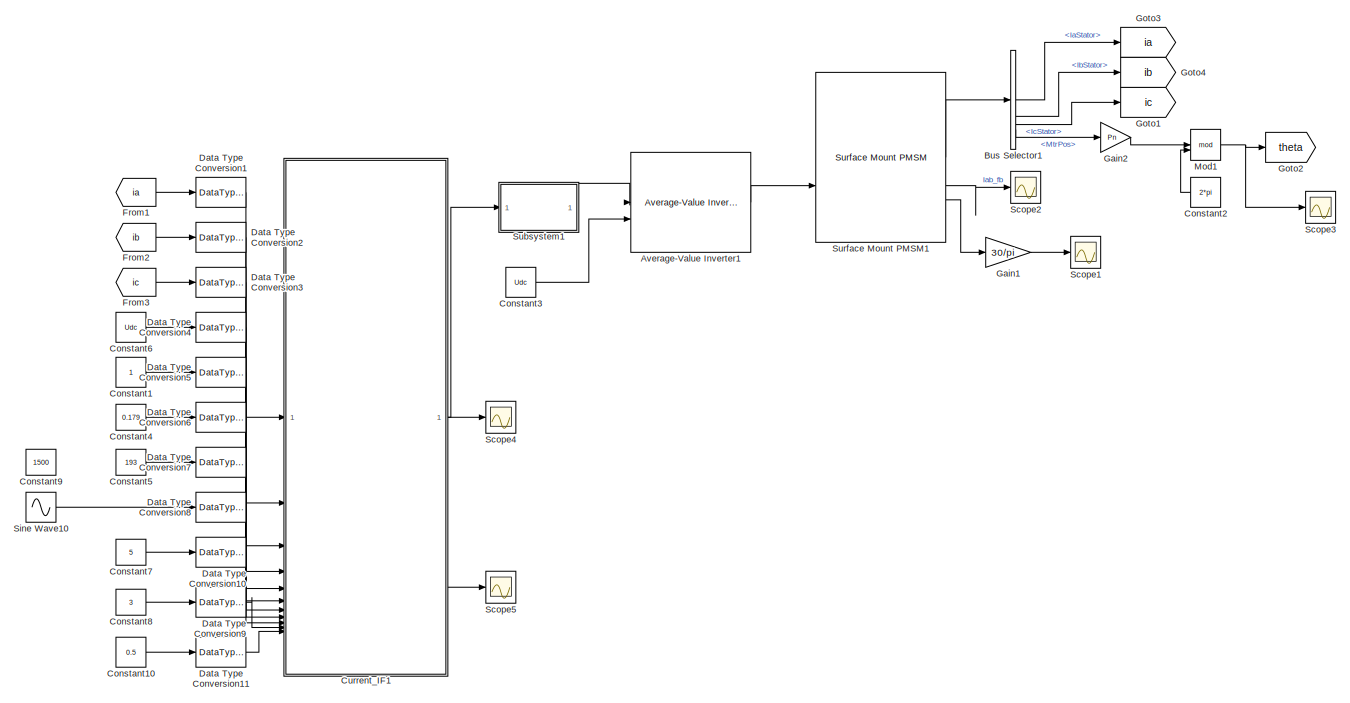
[diagram: root canvas - part 1/3, top left region]
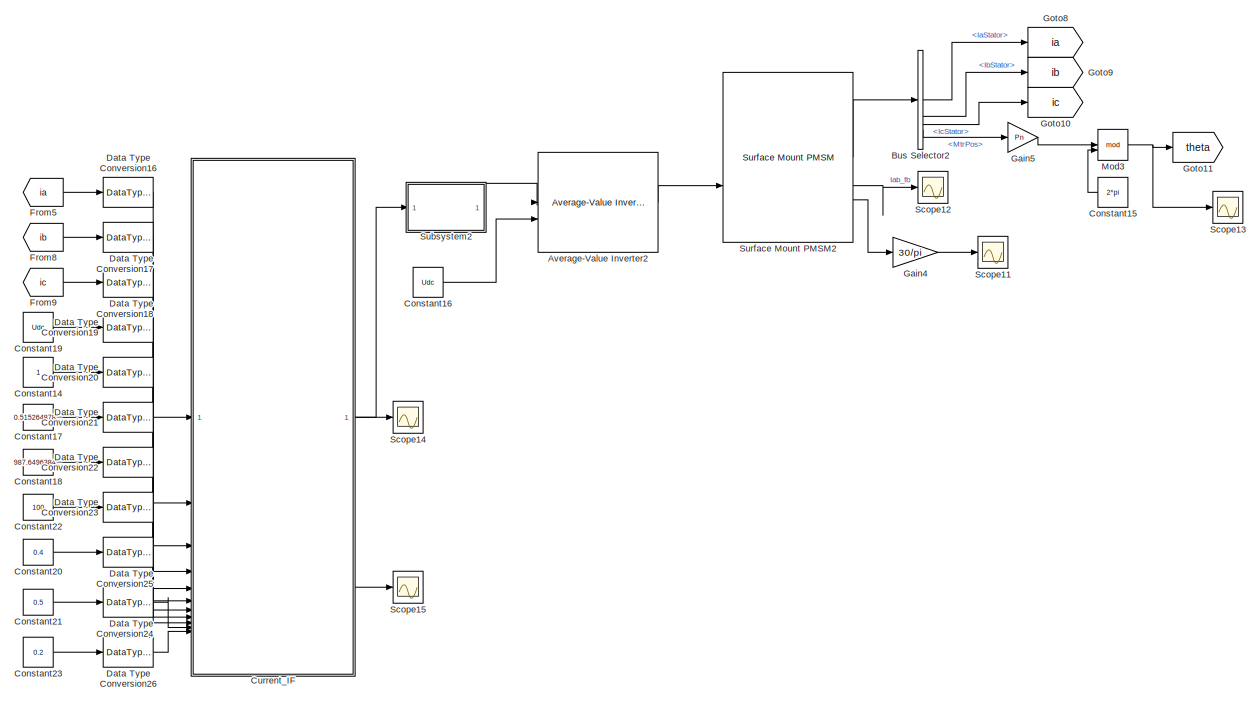
[diagram: root canvas - part 2/3, top right region]
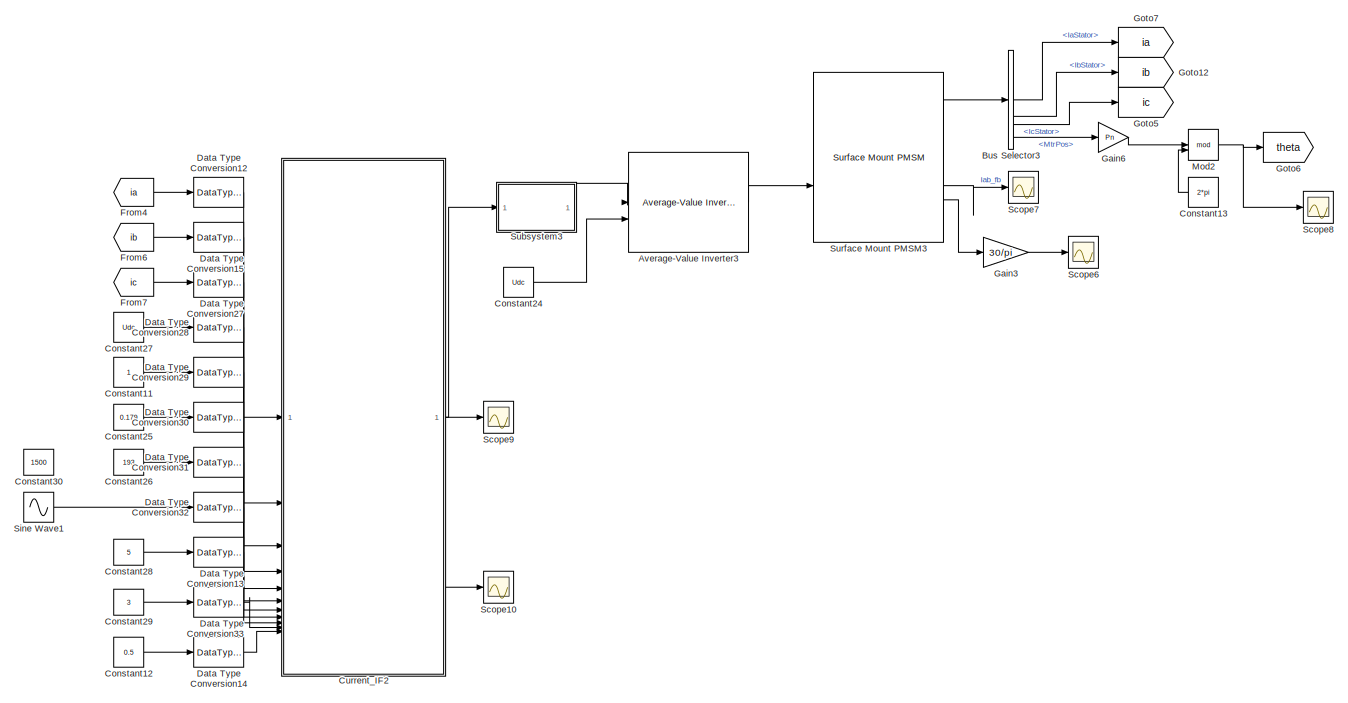
[diagram: root canvas - part 3/3, bottom left region]
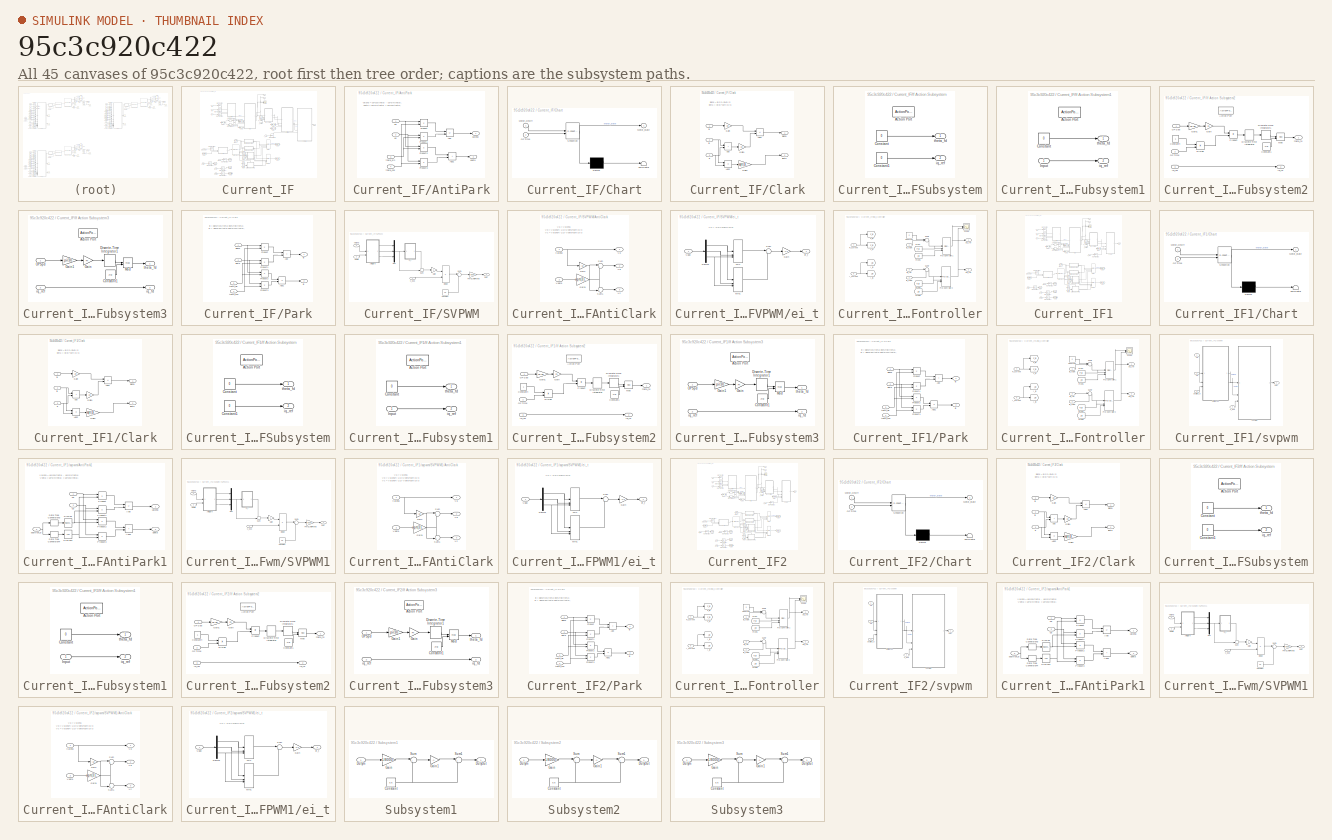
[diagram: thumbnail index - all 45 canvases of the model, root first then tree order]
MODEL slx_95c3c920c422
KIND model
CONFIG AbsTol = auto
CONFIG EnableMultiTasking = off
CONFIG FixedStep = 1e-4
CONFIG MaxStep = auto
CONFIG MinStep = auto
CONFIG RelTol = 1e-3
CONFIG SampleTimeConstraint = Unconstrained
CONFIG SolverName = FixedStepAuto
CONFIG StartTime = 0.0
CONFIG StopTime = 10.0
BLOCK [Reference] Average-Value Inverter1  REF=mcbplantlib/Average-Value Inverter
  Commented = on
  SourceBlock = mcbplantlib/Average-Value Inverter
  SourceType = Average Value Inverter
BLOCK [Reference] Average-Value Inverter2  REF=mcbplantlib/Average-Value Inverter
  Commented = on
  SourceBlock = mcbplantlib/Average-Value Inverter
  SourceType = Average Value Inverter
BLOCK [Reference] Average-Value Inverter3  REF=mcbplantlib/Average-Value Inverter
  SourceBlock = mcbplantlib/Average-Value Inverter
  SourceType = Average Value Inverter
BLOCK [BusSelector] Bus Selector1
  Commented = on
  OutputSignals = IaStator,IbStator,IcStator,MtrPos
BLOCK [BusSelector] Bus Selector2
  Commented = on
  OutputSignals = IaStator,IbStator,IcStator,MtrPos
BLOCK [BusSelector] Bus Selector3
  OutputSignals = IaStator,IbStator,IcStator,MtrPos
BLOCK [Constant] Constant1
  Commented = on
  OutDataTypeStr = single
BLOCK [Constant] Constant10
  Commented = on
  OutDataTypeStr = single
  Value = 0.5
BLOCK [Constant] Constant11
  OutDataTypeStr = single
BLOCK [Constant] Constant12
  OutDataTypeStr = single
  Value = 0.5
BLOCK [Constant] Constant13
  NameLocation = top
  OutDataTypeStr = single
  Value = 2*pi
BLOCK [Constant] Constant14
  Commented = on
  OutDataTypeStr = single
BLOCK [Constant] Constant15
  Commented = on
  NameLocation = top
  OutDataTypeStr = single
  Value = 2*pi
BLOCK [Constant] Constant16
  Commented = on
  Value = Udc
BLOCK [Constant] Constant17
  Commented = on
  OutDataTypeStr = single
  Value = 0.515264878487547
BLOCK [Constant] Constant18
  Commented = on
  OutDataTypeStr = single
  Value = 987.649638453674
BLOCK [Constant] Constant19
  Commented = on
  OutDataTypeStr = single
  Value = Udc
BLOCK [Constant] Constant2
  Commented = on
  NameLocation = top
  OutDataTypeStr = single
  Value = 2*pi
BLOCK [Constant] Constant20
  Commented = on
  OutDataTypeStr = single
  Value = 0.4
BLOCK [Constant] Constant21
  Commented = on
  OutDataTypeStr = single
  Value = 0.5
BLOCK [Constant] Constant22
  Commented = on
  OutDataTypeStr = single
  Value = 100
BLOCK [Constant] Constant23
  Commented = on
  OutDataTypeStr = single
  Value = 0.2
BLOCK [Constant] Constant24
  Value = Udc
BLOCK [Constant] Constant25
  OutDataTypeStr = single
  Value = 0.179
BLOCK [Constant] Constant26
  OutDataTypeStr = single
  Value = 193
BLOCK [Constant] Constant27
  OutDataTypeStr = single
  Value = Udc
BLOCK [Constant] Constant28
  OutDataTypeStr = single
  Value = 5
BLOCK [Constant] Constant29
  OutDataTypeStr = single
  Value = 3
BLOCK [Constant] Constant3
  Commented = on
  Value = Udc
BLOCK [Constant] Constant30
  OutDataTypeStr = single
  Value = 1500
BLOCK [Constant] Constant4
  Commented = on
  OutDataTypeStr = single
  Value = 0.179
BLOCK [Constant] Constant5
  Commented = on
  OutDataTypeStr = single
  Value = 193
BLOCK [Constant] Constant6
  Commented = on
  OutDataTypeStr = single
  Value = Udc
BLOCK [Constant] Constant7
  Commented = on
  OutDataTypeStr = single
  Value = 5
BLOCK [Constant] Constant8
  Commented = on
  OutDataTypeStr = single
  Value = 3
BLOCK [Constant] Constant9
  Commented = on
  OutDataTypeStr = single
  Value = 1500
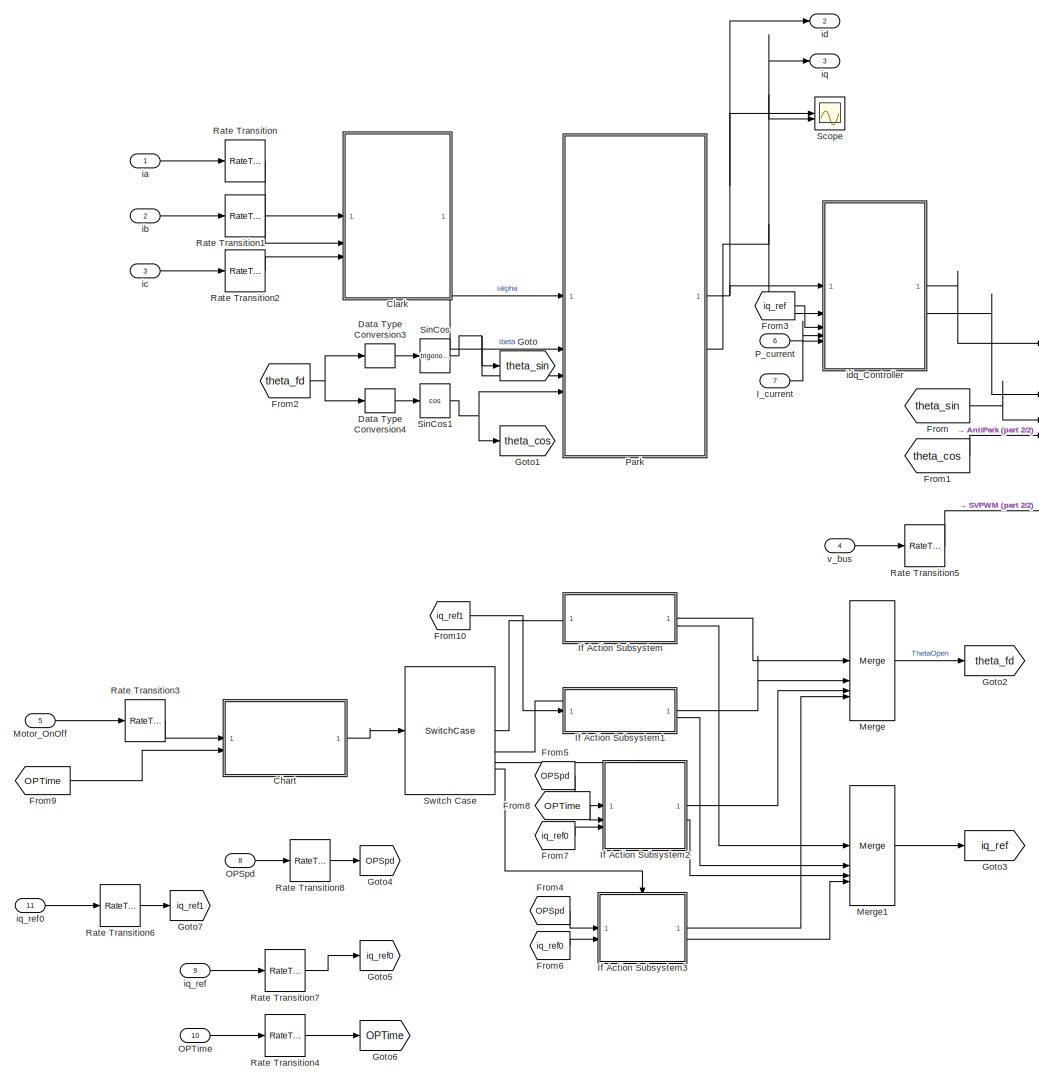
[diagram: Current_IF - part 1/2, center side, full height]
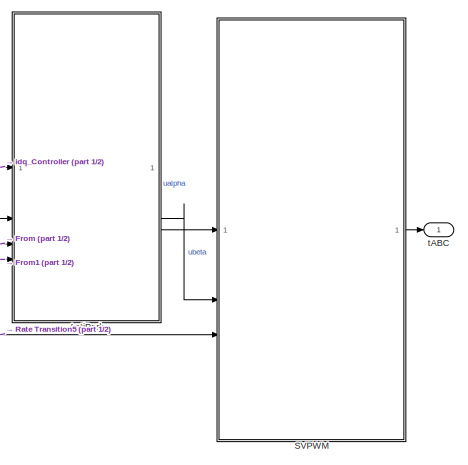
[diagram: Current_IF - part 2/2, middle right region]
BLOCK [SubSystem] Current_IF
  Commented = on
  TreatAsAtomicUnit = on
BLOCK [SubSystem] Current_IF/AntiPark
BLOCK [Sum] Current_IF/AntiPark/Add
  IconShape = rectangular
  Inputs = +-
BLOCK [Sum] Current_IF/AntiPark/Add1
  IconShape = rectangular
BLOCK [Product] Current_IF/AntiPark/Product
BLOCK [Product] Current_IF/AntiPark/Product1
BLOCK [Product] Current_IF/AntiPark/Product2
BLOCK [Product] Current_IF/AntiPark/Product3
BLOCK [Inport] Current_IF/AntiPark/theta_cos
  Port = 4
BLOCK [Inport] Current_IF/AntiPark/theta_sin
  Port = 3
BLOCK [Outport] Current_IF/AntiPark/ualpha
  OutDataTypeStr = single
BLOCK [Outport] Current_IF/AntiPark/ubeta
  OutDataTypeStr = single
  Port = 2
BLOCK [Inport] Current_IF/AntiPark/ud
BLOCK [Inport] Current_IF/AntiPark/uq
  Port = 2
BLOCK [SubSystem] Current_IF/Chart
  ErrorFcn = Stateflow.Translate.translate
  PermitHierarchicalResolution = ExplicitOnly
  SFBlockType = Chart
  TreatAsAtomicUnit = on
BLOCK [Demux] Current_IF/Chart/ Demux 
  Outputs = 1
BLOCK [S-Function] Current_IF/Chart/ SFunction 
  EnableBusSupport = on
  FunctionName = sf_sfun
  PortCounts = [2 2]
  SFcnIsStateOwnerBlock = off
  SFunctionDeploymentMode = off
  Tag = Stateflow S-Function 2
BLOCK [Terminator] Current_IF/Chart/ Terminator 
BLOCK [Inport] Current_IF/Chart/Motor_OnOff
BLOCK [Outport] Current_IF/Chart/Motor_state
BLOCK [Inport] Current_IF/Chart/OPTime
  Port = 2
BLOCK [SubSystem] Current_IF/Clark
BLOCK [Sum] Current_IF/Clark/Add
  AccumDataTypeStr = single
  IconShape = rectangular
  OutDataTypeStr = single
BLOCK [Sum] Current_IF/Clark/Add1
  AccumDataTypeStr = single
  IconShape = rectangular
  Inputs = +-
  OutDataTypeStr = single
BLOCK [Sum] Current_IF/Clark/Add2
  AccumDataTypeStr = single
  IconShape = rectangular
  Inputs = +-
  OutDataTypeStr = single
BLOCK [Gain] Current_IF/Clark/Gain
  Gain = 2/3
  ParamDataTypeStr = single
BLOCK [Gain] Current_IF/Clark/Gain1
  Gain = 1/3
  ParamDataTypeStr = single
BLOCK [Gain] Current_IF/Clark/Gain2
  Gain = sqrt(3)/3
  ParamDataTypeStr = single
BLOCK [Inport] Current_IF/Clark/ia
  OutDataTypeStr = single
BLOCK [Outport] Current_IF/Clark/ialpha
  OutDataTypeStr = single
BLOCK [Inport] Current_IF/Clark/ib
  OutDataTypeStr = single
  Port = 2
BLOCK [Outport] Current_IF/Clark/ibeta
  OutDataTypeStr = single
  Port = 2
BLOCK [Inport] Current_IF/Clark/ic
  OutDataTypeStr = single
  Port = 3
BLOCK [DataTypeConversion] Current_IF/Data Type Conversion3
  OutDataTypeStr = single
  RndMeth = Floor
  SaturateOnIntegerOverflow = off
BLOCK [DataTypeConversion] Current_IF/Data Type Conversion4
  OutDataTypeStr = single
  RndMeth = Floor
  SaturateOnIntegerOverflow = off
BLOCK [From] Current_IF/From
  GotoTag = theta_sin
BLOCK [From] Current_IF/From1
  GotoTag = theta_cos
BLOCK [From] Current_IF/From10
  GotoTag = iq_ref1
BLOCK [From] Current_IF/From2
  GotoTag = theta_fd
BLOCK [From] Current_IF/From3
  GotoTag = iq_ref
BLOCK [From] Current_IF/From4
  GotoTag = OPSpd
BLOCK [From] Current_IF/From5
  GotoTag = OPSpd
BLOCK [From] Current_IF/From6
  GotoTag = iq_ref0
BLOCK [From] Current_IF/From7
  GotoTag = iq_ref0
BLOCK [From] Current_IF/From8
  GotoTag = OPTime
  TagVisibility = global
BLOCK [From] Current_IF/From9
  GotoTag = OPTime
  TagVisibility = global
BLOCK [Goto] Current_IF/Goto
  GotoTag = theta_sin
BLOCK [Goto] Current_IF/Goto1
  GotoTag = theta_cos
BLOCK [Goto] Current_IF/Goto2
  GotoTag = theta_fd
BLOCK [Goto] Current_IF/Goto3
  GotoTag = iq_ref
BLOCK [Goto] Current_IF/Goto4
  GotoTag = OPSpd
BLOCK [Goto] Current_IF/Goto5
  GotoTag = iq_ref0
BLOCK [Goto] Current_IF/Goto6
  GotoTag = OPTime
  TagVisibility = global
BLOCK [Goto] Current_IF/Goto7
  GotoTag = iq_ref1
BLOCK [Inport] Current_IF/I_current
  Port = 7
BLOCK [SubSystem] Current_IF/If Action Subsystem
  TreatAsAtomicUnit = on
BLOCK [ActionPort] Current_IF/If Action Subsystem/Action Port
  ActionPortLabel = case [ 1 ]:
BLOCK [Constant] Current_IF/If Action Subsystem/Constant
  OutDataTypeStr = single
  Value = 0
BLOCK [Constant] Current_IF/If Action Subsystem/Constant1
  OutDataTypeStr = single
  Value = 0
BLOCK [Outport] Current_IF/If Action Subsystem/iq_ref
  Port = 2
BLOCK [Outport] Current_IF/If Action Subsystem/theta_fd
BLOCK [SubSystem] Current_IF/If Action Subsystem1
  TreatAsAtomicUnit = on
BLOCK [ActionPort] Current_IF/If Action Subsystem1/Action Port
  ActionPortLabel = case [ 2 ]:
BLOCK [Constant] Current_IF/If Action Subsystem1/Constant
  OutDataTypeStr = single
  Value = 0
BLOCK [Inport] Current_IF/If Action Subsystem1/Input
BLOCK [Outport] Current_IF/If Action Subsystem1/iq_ref
  Port = 2
BLOCK [Outport] Current_IF/If Action Subsystem1/theta_fd
BLOCK [SubSystem] Current_IF/If Action Subsystem2
  TreatAsAtomicUnit = on
BLOCK [ActionPort] Current_IF/If Action Subsystem2/Action Port
  ActionPortLabel = case [ 3 ]:
BLOCK [Constant] Current_IF/If Action Subsystem2/Constant1
  OutDataTypeStr = single
  Value = 2*pi
BLOCK [Constant] Current_IF/If Action Subsystem2/Constant4
  OutDataTypeStr = single
BLOCK [DiscreteIntegrator] Current_IF/If Action Subsystem2/Discrete-Time Integrator
  ICPrevOutput = DiscIntNeverNeededParam
  ICPrevScaledInput = DiscIntNeverNeededParam
  InitialConditionSetting = Auto
  SampleTime = -1
BLOCK [DiscreteIntegrator] Current_IF/If Action Subsystem2/Discrete-Time Integrator1
  ICPrevOutput = DiscIntNeverNeededParam
  ICPrevScaledInput = DiscIntNeverNeededParam
  InitialConditionSetting = Auto
  SampleTime = -1
BLOCK [Product] Current_IF/If Action Subsystem2/Divide
  Inputs = */
  OutDataTypeStr = single
BLOCK [Gain] Current_IF/If Action Subsystem2/Gain
  Gain = Pn
BLOCK [Gain] Current_IF/If Action Subsystem2/Gain1
  Gain = pi/30
  OutDataTypeStr = single
BLOCK [Math] Current_IF/If Action Subsystem2/Mod
  Operator = mod
BLOCK [Inport] Current_IF/If Action Subsystem2/OPSpd
  OutDataTypeStr = single
  PortDimensions = 1
  SignalType = real
  VarSizeSig = No
BLOCK [Inport] Current_IF/If Action Subsystem2/OPTime
  OutDataTypeStr = single
  Port = 2
  PortDimensions = 1
  SignalType = real
  VarSizeSig = No
BLOCK [Product] Current_IF/If Action Subsystem2/Product
  OutDataTypeStr = single
BLOCK [Outport] Current_IF/If Action Subsystem2/iq_fd
  Port = 2
BLOCK [Inport] Current_IF/If Action Subsystem2/iq_ref
  Port = 3
BLOCK [Outport] Current_IF/If Action Subsystem2/theta_fd
BLOCK [SubSystem] Current_IF/If Action Subsystem3
  TreatAsAtomicUnit = on
BLOCK [ActionPort] Current_IF/If Action Subsystem3/Action Port
  ActionPortLabel = case [ 4 ]:
BLOCK [Constant] Current_IF/If Action Subsystem3/Constant1
  OutDataTypeStr = single
  Value = 2*pi
BLOCK [DiscreteIntegrator] Current_IF/If Action Subsystem3/Discrete-Time Integrator1
  ICPrevOutput = DiscIntNeverNeededParam
  ICPrevScaledInput = DiscIntNeverNeededParam
  InitialConditionSetting = Auto
  SampleTime = -1
BLOCK [Gain] Current_IF/If Action Subsystem3/Gain
  Gain = Pn
BLOCK [Gain] Current_IF/If Action Subsystem3/Gain1
  Gain = pi/30
  OutDataTypeStr = single
BLOCK [Math] Current_IF/If Action Subsystem3/Mod
  Operator = mod
BLOCK [Inport] Current_IF/If Action Subsystem3/OPSpd
  OutDataTypeStr = single
  PortDimensions = 1
  SignalType = real
  VarSizeSig = No
BLOCK [Outport] Current_IF/If Action Subsystem3/iq_fd
  Port = 2
BLOCK [Inport] Current_IF/If Action Subsystem3/iq_ref
  Port = 2
BLOCK [Outport] Current_IF/If Action Subsystem3/theta_fd
BLOCK [Merge] Current_IF/Merge
  Inputs = 4
BLOCK [Merge] Current_IF/Merge1
  Inputs = 4
BLOCK [Inport] Current_IF/Motor_OnOff
  Port = 5
BLOCK [Inport] Current_IF/OPSpd
  Port = 8
BLOCK [Inport] Current_IF/OPTime
  Port = 10
BLOCK [Inport] Current_IF/P_current
  Port = 6
BLOCK [SubSystem] Current_IF/Park
BLOCK [Sum] Current_IF/Park/Add
  AccumDataTypeStr = single
  IconShape = rectangular
  OutDataTypeStr = single
BLOCK [Sum] Current_IF/Park/Add1
  AccumDataTypeStr = single
  IconShape = rectangular
  Inputs = -+
  OutDataTypeStr = single
BLOCK [Product] Current_IF/Park/Product
  OutDataTypeStr = single
BLOCK [Product] Current_IF/Park/Product1
  OutDataTypeStr = single
BLOCK [Product] Current_IF/Park/Product2
  OutDataTypeStr = single
BLOCK [Product] Current_IF/Park/Product3
  OutDataTypeStr = single
BLOCK [Inport] Current_IF/Park/ialpha
  OutDataTypeStr = single
BLOCK [Inport] Current_IF/Park/ibeta
  OutDataTypeStr = single
  Port = 2
BLOCK [Outport] Current_IF/Park/id
  OutDataTypeStr = single
BLOCK [Outport] Current_IF/Park/iq
  OutDataTypeStr = single
  Port = 2
BLOCK [Inport] Current_IF/Park/theta_cos
  OutDataTypeStr = single
  Port = 4
BLOCK [Inport] Current_IF/Park/theta_sin
  OutDataTypeStr = single
  Port = 3
BLOCK [RateTransition] Current_IF/Rate Transition
BLOCK [RateTransition] Current_IF/Rate Transition1
BLOCK [RateTransition] Current_IF/Rate Transition2
BLOCK [RateTransition] Current_IF/Rate Transition3
BLOCK [RateTransition] Current_IF/Rate Transition4
BLOCK [RateTransition] Current_IF/Rate Transition5
BLOCK [RateTransition] Current_IF/Rate Transition6
BLOCK [RateTransition] Current_IF/Rate Transition7
BLOCK [RateTransition] Current_IF/Rate Transition8
BLOCK [SubSystem] Current_IF/SVPWM
  RTWSystemCode = Reusable function
  TreatAsAtomicUnit = on
BLOCK [SubSystem] Current_IF/SVPWM/AntiClark
BLOCK [Gain] Current_IF/SVPWM/AntiClark/Gain
  Gain = -1/2
  OutDataTypeStr = single
BLOCK [Gain] Current_IF/SVPWM/AntiClark/Gain1
  Gain = sqrt(3)/2
  OutDataTypeStr = single
BLOCK [Sum] Current_IF/SVPWM/AntiClark/Sum
  Inputs = |++
  OutDataTypeStr = single
BLOCK [Sum] Current_IF/SVPWM/AntiClark/Sum1
  Inputs = -+|
  OutDataTypeStr = single
BLOCK [Outport] Current_IF/SVPWM/AntiClark/Va
  OutDataTypeStr = single
BLOCK [Inport] Current_IF/SVPWM/AntiClark/Valpha
  OutDataTypeStr = single
BLOCK [Outport] Current_IF/SVPWM/AntiClark/Vb
  OutDataTypeStr = single
  Port = 2
BLOCK [Inport] Current_IF/SVPWM/AntiClark/Vbeta
  OutDataTypeStr = single
  Port = 2
BLOCK [Outport] Current_IF/SVPWM/AntiClark/Vc
  OutDataTypeStr = single
  Port = 3
BLOCK [Constant] Current_IF/SVPWM/Constant
  OutDataTypeStr = single
  Value = 0.5
BLOCK [Product] Current_IF/SVPWM/Divide
  Inputs = */
  OutDataTypeStr = single
BLOCK [Gain] Current_IF/SVPWM/Gain
  Gain = -1
  OutDataTypeStr = single
BLOCK [Mux] Current_IF/SVPWM/Mux
  DisplayOption = bar
  Inputs = 3
BLOCK [Gain] Current_IF/SVPWM/PWM_HalfPeriod
  Gain = 8000
  OutDataTypeStr = single
BLOCK [Sum] Current_IF/SVPWM/Sum
  Inputs = ++|
  OutDataTypeStr = single
BLOCK [Sum] Current_IF/SVPWM/Sum1
  Inputs = |++
  OutDataTypeStr = single
BLOCK [Inport] Current_IF/SVPWM/Valpha
  OutDataTypeStr = single
BLOCK [Inport] Current_IF/SVPWM/Vbeta
  OutDataTypeStr = single
  Port = 2
BLOCK [SubSystem] Current_IF/SVPWM/ei_t
BLOCK [Demux] Current_IF/SVPWM/ei_t/Demux
  Outputs = 3
BLOCK [Gain] Current_IF/SVPWM/ei_t/Gain
  Gain = -1/2
  OutDataTypeStr = single
BLOCK [MinMax] Current_IF/SVPWM/ei_t/Min
  Inputs = 3
  OutDataTypeStr = single
BLOCK [MinMax] Current_IF/SVPWM/ei_t/Min1
  Function = max
  Inputs = 3
  OutDataTypeStr = single
BLOCK [Sum] Current_IF/SVPWM/ei_t/Sum
  Inputs = |++
  OutDataTypeStr = single
BLOCK [Inport] Current_IF/SVPWM/ei_t/Vabc
  OutDataTypeStr = single
BLOCK [Outport] Current_IF/SVPWM/ei_t/ei_t
  OutDataTypeStr = single
BLOCK [Outport] Current_IF/SVPWM/tABC
  OutDataTypeStr = single
BLOCK [Inport] Current_IF/SVPWM/v_bus
  OutDataTypeStr = single
  Port = 3
BLOCK [Scope] Current_IF/Scope
  Floating = off
  NumInputPorts = 2
  ScopeSpecificationString = Simulink.scopes.TimeScopeBlockCfg('CurrentConfiguration', extmgr.ConfigurationSet(extmgr.Configuration('Core','General UI',true),extmgr.Configuration('Core','Source UI',true),extmgr.Configuration('Sources','WiredSimulink',true,'DataLoggingVariableName','ScopeData1'),extmgr.Configuration('Visuals','Time Domain',true,'SerializedDisplays',{struct('MinYLimReal','-1.52617','MaxYLimReal','2.37444','YLab...<+1399ch>  <repeated x3 — deduplicated; at blocks: Scope>
BLOCK [Trigonometry] Current_IF/SinCos
BLOCK [Trigonometry] Current_IF/SinCos1
  Operator = cos
BLOCK [SwitchCase] Current_IF/Switch Case
  CaseConditions = {1,2,3,4}
  ShowDefaultCase = off
BLOCK [Inport] Current_IF/ia
BLOCK [Inport] Current_IF/ib
  Port = 2
BLOCK [Inport] Current_IF/ic
  Port = 3
BLOCK [Outport] Current_IF/id
  Port = 2
BLOCK [SubSystem] Current_IF/idq_Controller
BLOCK [Constant] Current_IF/idq_Controller/Constant
  OutDataTypeStr = single
  Value = 0
BLOCK [From] Current_IF/idq_Controller/From
  GotoTag = P_id
BLOCK [From] Current_IF/idq_Controller/From1
  GotoTag = I_id
BLOCK [From] Current_IF/idq_Controller/From2
  GotoTag = P_iq
BLOCK [From] Current_IF/idq_Controller/From3
  GotoTag = I_iq
BLOCK [Inport] Current_IF/idq_Controller/I_current
  Port = 5
BLOCK [Goto] Current_IF/idq_Controller/I_id
  GotoTag = I_id
BLOCK [Goto] Current_IF/idq_Controller/I_iq
  GotoTag = I_iq
BLOCK [Reference] Current_IF/idq_Controller/PID Controller1  REF=slpidlib/PID Controller
  SourceBlock = slpidlib/PID Controller
  SourceType = PID 1dof
BLOCK [Reference] Current_IF/idq_Controller/PID Controller2  REF=slpidlib/PID Controller
  SourceBlock = slpidlib/PID Controller
  SourceType = PID 1dof
BLOCK [Inport] Current_IF/idq_Controller/P_current
  Port = 4
BLOCK [Goto] Current_IF/idq_Controller/P_id
  GotoTag = P_id
BLOCK [Goto] Current_IF/idq_Controller/P_iq
  GotoTag = P_iq
BLOCK [Scope] Current_IF/idq_Controller/Scope
  Floating = off
  NumInputPorts = 2
  ScopeSpecificationString = Simulink.scopes.TimeScopeBlockCfg('CurrentConfiguration', extmgr.ConfigurationSet(extmgr.Configuration('Core','General UI',true),extmgr.Configuration('Core','Source UI',true),extmgr.Configuration('Sources','WiredSimulink',true,'DataLoggingVariableName','ScopeData2'),extmgr.Configuration('Visuals','Time Domain',true,'SerializedDisplays',{struct('MinYLimReal','-5.23788','MaxYLimReal','14.43839','YLa...<+1450ch>  <repeated x3 — deduplicated; at blocks: Scope>
BLOCK [Sum] Current_IF/idq_Controller/Sum1
  AccumDataTypeStr = single
  Inputs = |+-
  OutDataTypeStr = single
BLOCK [Sum] Current_IF/idq_Controller/Sum7
  AccumDataTypeStr = single
  Inputs = |+-
  OutDataTypeStr = single
BLOCK [Inport] Current_IF/idq_Controller/id_fdbk
  OutDataTypeStr = single
BLOCK [Inport] Current_IF/idq_Controller/iq_fdbk
  OutDataTypeStr = single
  Port = 2
BLOCK [Inport] Current_IF/idq_Controller/iq_ref
  OutDataTypeStr = single
  Port = 3
BLOCK [Outport] Current_IF/idq_Controller/ud_ref
  OutDataTypeStr = single
BLOCK [Outport] Current_IF/idq_Controller/uq_ref
  OutDataTypeStr = single
  Port = 2
BLOCK [Outport] Current_IF/iq
  Port = 3
BLOCK [Inport] Current_IF/iq_ref
  Port = 9
BLOCK [Inport] Current_IF/iq_ref0
  Port = 11
BLOCK [Outport] Current_IF/tABC
BLOCK [Inport] Current_IF/v_bus
  Port = 4
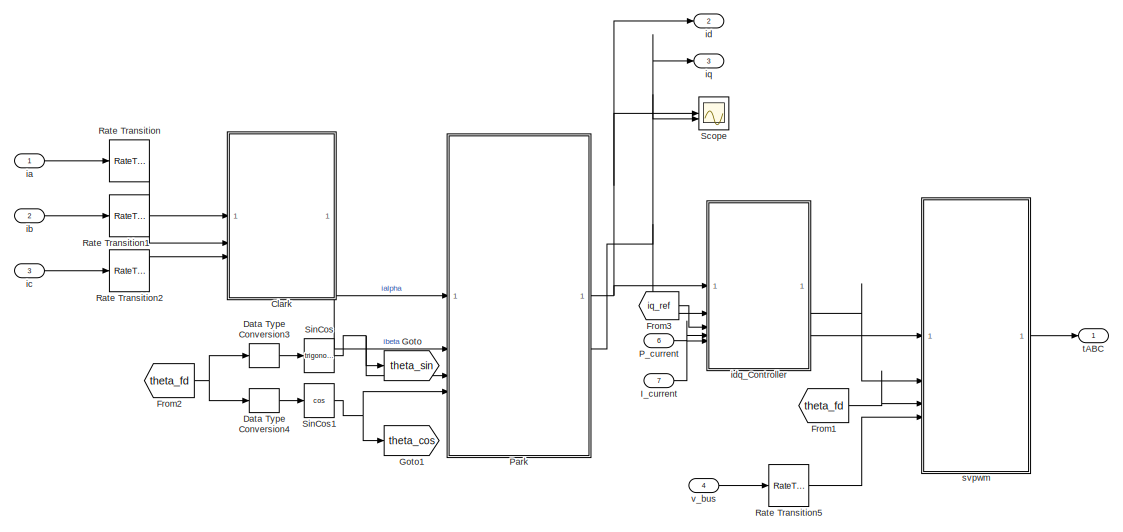
[diagram: Current_IF1 - part 1/2, full width, top band]
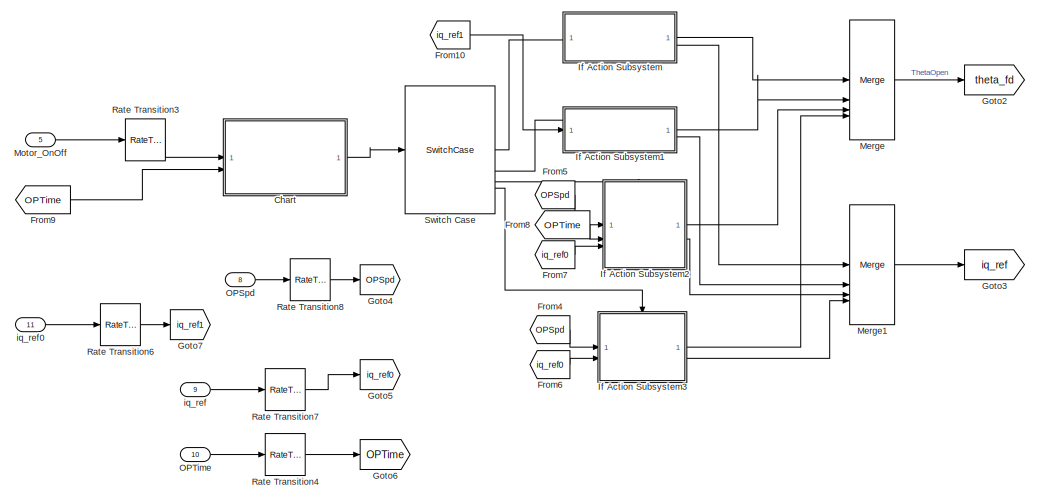
[diagram: Current_IF1 - part 2/2, full width, bottom band]
BLOCK [SubSystem] Current_IF1
  Commented = on
  TreatAsAtomicUnit = on
BLOCK [SubSystem] Current_IF1/Chart
  ErrorFcn = Stateflow.Translate.translate
  PermitHierarchicalResolution = ExplicitOnly
  SFBlockType = Chart
  TreatAsAtomicUnit = on
BLOCK [Demux] Current_IF1/Chart/ Demux 
  Outputs = 1
BLOCK [S-Function] Current_IF1/Chart/ SFunction 
  EnableBusSupport = on
  FunctionName = sf_sfun
  PortCounts = [2 2]
  SFcnIsStateOwnerBlock = off
  SFunctionDeploymentMode = off
  Tag = Stateflow S-Function 1
BLOCK [Terminator] Current_IF1/Chart/ Terminator 
BLOCK [Inport] Current_IF1/Chart/Motor_OnOff
BLOCK [Outport] Current_IF1/Chart/Motor_state
BLOCK [Inport] Current_IF1/Chart/OPTime
  Port = 2
BLOCK [SubSystem] Current_IF1/Clark
BLOCK [Sum] Current_IF1/Clark/Add
  AccumDataTypeStr = single
  IconShape = rectangular
  OutDataTypeStr = single
BLOCK [Sum] Current_IF1/Clark/Add1
  AccumDataTypeStr = single
  IconShape = rectangular
  Inputs = +-
  OutDataTypeStr = single
BLOCK [Sum] Current_IF1/Clark/Add2
  AccumDataTypeStr = single
  IconShape = rectangular
  Inputs = +-
  OutDataTypeStr = single
BLOCK [Gain] Current_IF1/Clark/Gain
  Gain = 2/3
  ParamDataTypeStr = single
BLOCK [Gain] Current_IF1/Clark/Gain1
  Gain = 1/3
  ParamDataTypeStr = single
BLOCK [Gain] Current_IF1/Clark/Gain2
  Gain = sqrt(3)/3
  ParamDataTypeStr = single
BLOCK [Inport] Current_IF1/Clark/ia
  OutDataTypeStr = single
BLOCK [Outport] Current_IF1/Clark/ialpha
  OutDataTypeStr = single
BLOCK [Inport] Current_IF1/Clark/ib
  OutDataTypeStr = single
  Port = 2
BLOCK [Outport] Current_IF1/Clark/ibeta
  OutDataTypeStr = single
  Port = 2
BLOCK [Inport] Current_IF1/Clark/ic
  OutDataTypeStr = single
  Port = 3
BLOCK [DataTypeConversion] Current_IF1/Data Type Conversion3
  OutDataTypeStr = single
  RndMeth = Floor
  SaturateOnIntegerOverflow = off
BLOCK [DataTypeConversion] Current_IF1/Data Type Conversion4
  OutDataTypeStr = single
  RndMeth = Floor
  SaturateOnIntegerOverflow = off
BLOCK [From] Current_IF1/From1
  GotoTag = theta_fd
BLOCK [From] Current_IF1/From10
  GotoTag = iq_ref1
BLOCK [From] Current_IF1/From2
  GotoTag = theta_fd
BLOCK [From] Current_IF1/From3
  GotoTag = iq_ref
BLOCK [From] Current_IF1/From4
  GotoTag = OPSpd
BLOCK [From] Current_IF1/From5
  GotoTag = OPSpd
BLOCK [From] Current_IF1/From6
  GotoTag = iq_ref0
BLOCK [From] Current_IF1/From7
  GotoTag = iq_ref0
BLOCK [From] Current_IF1/From8
  GotoTag = OPTime
  TagVisibility = global
BLOCK [From] Current_IF1/From9
  GotoTag = OPTime
  TagVisibility = global
BLOCK [Goto] Current_IF1/Goto
  GotoTag = theta_sin
BLOCK [Goto] Current_IF1/Goto1
  GotoTag = theta_cos
BLOCK [Goto] Current_IF1/Goto2
  GotoTag = theta_fd
BLOCK [Goto] Current_IF1/Goto3
  GotoTag = iq_ref
BLOCK [Goto] Current_IF1/Goto4
  GotoTag = OPSpd
BLOCK [Goto] Current_IF1/Goto5
  GotoTag = iq_ref0
BLOCK [Goto] Current_IF1/Goto6
  GotoTag = OPTime
  TagVisibility = global
BLOCK [Goto] Current_IF1/Goto7
  GotoTag = iq_ref1
BLOCK [Inport] Current_IF1/I_current
  Port = 7
BLOCK [SubSystem] Current_IF1/If Action Subsystem
  TreatAsAtomicUnit = on
BLOCK [ActionPort] Current_IF1/If Action Subsystem/Action Port
  ActionPortLabel = case [ 1 ]:
BLOCK [Constant] Current_IF1/If Action Subsystem/Constant
  OutDataTypeStr = single
  Value = 0
BLOCK [Constant] Current_IF1/If Action Subsystem/Constant1
  OutDataTypeStr = single
  Value = 0
BLOCK [Outport] Current_IF1/If Action Subsystem/iq_ref
  Port = 2
BLOCK [Outport] Current_IF1/If Action Subsystem/theta_fd
BLOCK [SubSystem] Current_IF1/If Action Subsystem1
  TreatAsAtomicUnit = on
BLOCK [ActionPort] Current_IF1/If Action Subsystem1/Action Port
  ActionPortLabel = case [ 2 ]:
BLOCK [Constant] Current_IF1/If Action Subsystem1/Constant
  OutDataTypeStr = single
  Value = 0
BLOCK [Inport] Current_IF1/If Action Subsystem1/Input
BLOCK [Outport] Current_IF1/If Action Subsystem1/iq_ref
  Port = 2
BLOCK [Outport] Current_IF1/If Action Subsystem1/theta_fd
BLOCK [SubSystem] Current_IF1/If Action Subsystem2
  TreatAsAtomicUnit = on
BLOCK [ActionPort] Current_IF1/If Action Subsystem2/Action Port
  ActionPortLabel = case [ 3 ]:
BLOCK [Constant] Current_IF1/If Action Subsystem2/Constant1
  OutDataTypeStr = single
  Value = 2*pi
BLOCK [Constant] Current_IF1/If Action Subsystem2/Constant4
  OutDataTypeStr = single
BLOCK [DiscreteIntegrator] Current_IF1/If Action Subsystem2/Discrete-Time Integrator
  ICPrevOutput = DiscIntNeverNeededParam
  ICPrevScaledInput = DiscIntNeverNeededParam
  InitialConditionSetting = Auto
  SampleTime = -1
BLOCK [DiscreteIntegrator] Current_IF1/If Action Subsystem2/Discrete-Time Integrator1
  ICPrevOutput = DiscIntNeverNeededParam
  ICPrevScaledInput = DiscIntNeverNeededParam
  InitialConditionSetting = Auto
  SampleTime = -1
BLOCK [Product] Current_IF1/If Action Subsystem2/Divide
  Inputs = */
  OutDataTypeStr = single
BLOCK [Gain] Current_IF1/If Action Subsystem2/Gain
  Gain = Pn
BLOCK [Gain] Current_IF1/If Action Subsystem2/Gain1
  Gain = pi/30
  OutDataTypeStr = single
BLOCK [Math] Current_IF1/If Action Subsystem2/Mod
  Operator = mod
BLOCK [Inport] Current_IF1/If Action Subsystem2/OPSpd
  OutDataTypeStr = single
  PortDimensions = 1
  SignalType = real
  VarSizeSig = No
BLOCK [Inport] Current_IF1/If Action Subsystem2/OPTime
  OutDataTypeStr = single
  Port = 2
  PortDimensions = 1
  SignalType = real
  VarSizeSig = No
BLOCK [Product] Current_IF1/If Action Subsystem2/Product
  OutDataTypeStr = single
BLOCK [Outport] Current_IF1/If Action Subsystem2/iq_fd
  Port = 2
BLOCK [Inport] Current_IF1/If Action Subsystem2/iq_ref
  Port = 3
BLOCK [Outport] Current_IF1/If Action Subsystem2/theta_fd
BLOCK [SubSystem] Current_IF1/If Action Subsystem3
  TreatAsAtomicUnit = on
BLOCK [ActionPort] Current_IF1/If Action Subsystem3/Action Port
  ActionPortLabel = case [ 4 ]:
BLOCK [Constant] Current_IF1/If Action Subsystem3/Constant1
  OutDataTypeStr = single
  Value = 2*pi
BLOCK [DiscreteIntegrator] Current_IF1/If Action Subsystem3/Discrete-Time Integrator1
  ICPrevOutput = DiscIntNeverNeededParam
  ICPrevScaledInput = DiscIntNeverNeededParam
  InitialConditionSetting = Auto
  SampleTime = -1
BLOCK [Gain] Current_IF1/If Action Subsystem3/Gain
  Gain = Pn
BLOCK [Gain] Current_IF1/If Action Subsystem3/Gain1
  Gain = pi/30
  OutDataTypeStr = single
BLOCK [Math] Current_IF1/If Action Subsystem3/Mod
  Operator = mod
BLOCK [Inport] Current_IF1/If Action Subsystem3/OPSpd
  OutDataTypeStr = single
  PortDimensions = 1
  SignalType = real
  VarSizeSig = No
BLOCK [Outport] Current_IF1/If Action Subsystem3/iq_fd
  Port = 2
BLOCK [Inport] Current_IF1/If Action Subsystem3/iq_ref
  Port = 2
BLOCK [Outport] Current_IF1/If Action Subsystem3/theta_fd
BLOCK [Merge] Current_IF1/Merge
  Inputs = 4
BLOCK [Merge] Current_IF1/Merge1
  Inputs = 4
BLOCK [Inport] Current_IF1/Motor_OnOff
  Port = 5
BLOCK [Inport] Current_IF1/OPSpd
  Port = 8
BLOCK [Inport] Current_IF1/OPTime
  Port = 10
BLOCK [Inport] Current_IF1/P_current
  Port = 6
BLOCK [SubSystem] Current_IF1/Park
BLOCK [Sum] Current_IF1/Park/Add
  AccumDataTypeStr = single
  IconShape = rectangular
  OutDataTypeStr = single
BLOCK [Sum] Current_IF1/Park/Add1
  AccumDataTypeStr = single
  IconShape = rectangular
  Inputs = -+
  OutDataTypeStr = single
BLOCK [Product] Current_IF1/Park/Product
  OutDataTypeStr = single
BLOCK [Product] Current_IF1/Park/Product1
  OutDataTypeStr = single
BLOCK [Product] Current_IF1/Park/Product2
  OutDataTypeStr = single
BLOCK [Product] Current_IF1/Park/Product3
  OutDataTypeStr = single
BLOCK [Inport] Current_IF1/Park/ialpha
  OutDataTypeStr = single
BLOCK [Inport] Current_IF1/Park/ibeta
  OutDataTypeStr = single
  Port = 2
BLOCK [Outport] Current_IF1/Park/id
  OutDataTypeStr = single
BLOCK [Outport] Current_IF1/Park/iq
  OutDataTypeStr = single
  Port = 2
BLOCK [Inport] Current_IF1/Park/theta_cos
  OutDataTypeStr = single
  Port = 4
BLOCK [Inport] Current_IF1/Park/theta_sin
  OutDataTypeStr = single
  Port = 3
BLOCK [RateTransition] Current_IF1/Rate Transition
BLOCK [RateTransition] Current_IF1/Rate Transition1
BLOCK [RateTransition] Current_IF1/Rate Transition2
BLOCK [RateTransition] Current_IF1/Rate Transition3
BLOCK [RateTransition] Current_IF1/Rate Transition4
BLOCK [RateTransition] Current_IF1/Rate Transition5
BLOCK [RateTransition] Current_IF1/Rate Transition6
BLOCK [RateTransition] Current_IF1/Rate Transition7
BLOCK [RateTransition] Current_IF1/Rate Transition8
BLOCK [Scope] Current_IF1/Scope
  Floating = off
  NumInputPorts = 2
BLOCK [Trigonometry] Current_IF1/SinCos
BLOCK [Trigonometry] Current_IF1/SinCos1
  Operator = cos
BLOCK [SwitchCase] Current_IF1/Switch Case
  CaseConditions = {1,2,3,4}
  ShowDefaultCase = off
BLOCK [Inport] Current_IF1/ia
BLOCK [Inport] Current_IF1/ib
  Port = 2
BLOCK [Inport] Current_IF1/ic
  Port = 3
BLOCK [Outport] Current_IF1/id
  Port = 2
BLOCK [SubSystem] Current_IF1/idq_Controller
BLOCK [Constant] Current_IF1/idq_Controller/Constant
  OutDataTypeStr = single
  Value = 0
BLOCK [From] Current_IF1/idq_Controller/From
  GotoTag = P_id
BLOCK [From] Current_IF1/idq_Controller/From1
  GotoTag = I_id
BLOCK [From] Current_IF1/idq_Controller/From2
  GotoTag = P_iq
BLOCK [From] Current_IF1/idq_Controller/From3
  GotoTag = I_iq
BLOCK [Inport] Current_IF1/idq_Controller/I_current
  Port = 5
BLOCK [Goto] Current_IF1/idq_Controller/I_id
  GotoTag = I_id
BLOCK [Goto] Current_IF1/idq_Controller/I_iq
  GotoTag = I_iq
BLOCK [Reference] Current_IF1/idq_Controller/PID Controller1  REF=slpidlib/PID Controller
  SourceBlock = slpidlib/PID Controller
  SourceType = PID 1dof
BLOCK [Reference] Current_IF1/idq_Controller/PID Controller2  REF=slpidlib/PID Controller
  SourceBlock = slpidlib/PID Controller
  SourceType = PID 1dof
BLOCK [Inport] Current_IF1/idq_Controller/P_current
  Port = 4
BLOCK [Goto] Current_IF1/idq_Controller/P_id
  GotoTag = P_id
BLOCK [Goto] Current_IF1/idq_Controller/P_iq
  GotoTag = P_iq
BLOCK [Scope] Current_IF1/idq_Controller/Scope
  Floating = off
  NumInputPorts = 2
BLOCK [Sum] Current_IF1/idq_Controller/Sum1
  AccumDataTypeStr = single
  Inputs = |+-
  OutDataTypeStr = single
BLOCK [Sum] Current_IF1/idq_Controller/Sum7
  AccumDataTypeStr = single
  Inputs = |+-
  OutDataTypeStr = single
BLOCK [Inport] Current_IF1/idq_Controller/id_fdbk
  OutDataTypeStr = single
BLOCK [Inport] Current_IF1/idq_Controller/iq_fdbk
  OutDataTypeStr = single
  Port = 2
BLOCK [Inport] Current_IF1/idq_Controller/iq_ref
  OutDataTypeStr = single
  Port = 3
BLOCK [Outport] Current_IF1/idq_Controller/ud_ref
  OutDataTypeStr = single
BLOCK [Outport] Current_IF1/idq_Controller/uq_ref
  OutDataTypeStr = single
  Port = 2
BLOCK [Outport] Current_IF1/iq
  Port = 3
BLOCK [Inport] Current_IF1/iq_ref
  Port = 9
BLOCK [Inport] Current_IF1/iq_ref0
  Port = 11
BLOCK [SubSystem] Current_IF1/svpwm
BLOCK [SubSystem] Current_IF1/svpwm/AntiPark1
BLOCK [Sum] Current_IF1/svpwm/AntiPark1/Add
  IconShape = rectangular
  Inputs = +-
BLOCK [Sum] Current_IF1/svpwm/AntiPark1/Add1
  IconShape = rectangular
BLOCK [DataTypeConversion] Current_IF1/svpwm/AntiPark1/Data Type Conversion3
  OutDataTypeStr = single
  RndMeth = Floor
  SaturateOnIntegerOverflow = off
BLOCK [DataTypeConversion] Current_IF1/svpwm/AntiPark1/Data Type Conversion4
  OutDataTypeStr = single
  RndMeth = Floor
  SaturateOnIntegerOverflow = off
BLOCK [Product] Current_IF1/svpwm/AntiPark1/Product
BLOCK [Product] Current_IF1/svpwm/AntiPark1/Product1
BLOCK [Product] Current_IF1/svpwm/AntiPark1/Product2
BLOCK [Product] Current_IF1/svpwm/AntiPark1/Product3
BLOCK [Trigonometry] Current_IF1/svpwm/AntiPark1/SinCos
BLOCK [Trigonometry] Current_IF1/svpwm/AntiPark1/SinCos1
  Operator = cos
BLOCK [Inport] Current_IF1/svpwm/AntiPark1/position_e
  Port = 3
BLOCK [Outport] Current_IF1/svpwm/AntiPark1/ualpha
  OutDataTypeStr = single
BLOCK [Outport] Current_IF1/svpwm/AntiPark1/ubeta
  OutDataTypeStr = single
  Port = 2
BLOCK [Inport] Current_IF1/svpwm/AntiPark1/ud
BLOCK [Inport] Current_IF1/svpwm/AntiPark1/uq
  Port = 2
BLOCK [SubSystem] Current_IF1/svpwm/SVPWM1
  RTWSystemCode = Reusable function
  TreatAsAtomicUnit = on
BLOCK [SubSystem] Current_IF1/svpwm/SVPWM1/AntiClark
BLOCK [Gain] Current_IF1/svpwm/SVPWM1/AntiClark/Gain
  Gain = -1/2
  OutDataTypeStr = single
BLOCK [Gain] Current_IF1/svpwm/SVPWM1/AntiClark/Gain1
  Gain = sqrt(3)/2
  OutDataTypeStr = single
BLOCK [Sum] Current_IF1/svpwm/SVPWM1/AntiClark/Sum
  Inputs = |++
  OutDataTypeStr = single
BLOCK [Sum] Current_IF1/svpwm/SVPWM1/AntiClark/Sum1
  Inputs = -+|
  OutDataTypeStr = single
BLOCK [Outport] Current_IF1/svpwm/SVPWM1/AntiClark/Va
  OutDataTypeStr = single
BLOCK [Inport] Current_IF1/svpwm/SVPWM1/AntiClark/Valpha
  OutDataTypeStr = single
BLOCK [Outport] Current_IF1/svpwm/SVPWM1/AntiClark/Vb
  OutDataTypeStr = single
  Port = 2
BLOCK [Inport] Current_IF1/svpwm/SVPWM1/AntiClark/Vbeta
  OutDataTypeStr = single
  Port = 2
BLOCK [Outport] Current_IF1/svpwm/SVPWM1/AntiClark/Vc
  OutDataTypeStr = single
  Port = 3
BLOCK [Constant] Current_IF1/svpwm/SVPWM1/Constant
  OutDataTypeStr = single
  Value = 0.5
BLOCK [Product] Current_IF1/svpwm/SVPWM1/Divide
  Inputs = */
  OutDataTypeStr = single
BLOCK [Gain] Current_IF1/svpwm/SVPWM1/Gain
  Gain = -1
  OutDataTypeStr = single
BLOCK [Mux] Current_IF1/svpwm/SVPWM1/Mux
  DisplayOption = bar
  Inputs = 3
BLOCK [Gain] Current_IF1/svpwm/SVPWM1/PWM_HalfPeriod
  Gain = 8000
  OutDataTypeStr = single
BLOCK [Sum] Current_IF1/svpwm/SVPWM1/Sum
  Inputs = ++|
  OutDataTypeStr = single
BLOCK [Sum] Current_IF1/svpwm/SVPWM1/Sum1
  Inputs = |++
  OutDataTypeStr = single
BLOCK [Inport] Current_IF1/svpwm/SVPWM1/Valpha
  OutDataTypeStr = single
BLOCK [Inport] Current_IF1/svpwm/SVPWM1/Vbeta
  OutDataTypeStr = single
  Port = 2
BLOCK [SubSystem] Current_IF1/svpwm/SVPWM1/ei_t
BLOCK [Demux] Current_IF1/svpwm/SVPWM1/ei_t/Demux
  Outputs = 3
BLOCK [Gain] Current_IF1/svpwm/SVPWM1/ei_t/Gain
  Gain = -1/2
  OutDataTypeStr = single
BLOCK [MinMax] Current_IF1/svpwm/SVPWM1/ei_t/Min
  Inputs = 3
  OutDataTypeStr = single
BLOCK [MinMax] Current_IF1/svpwm/SVPWM1/ei_t/Min1
  Function = max
  Inputs = 3
  OutDataTypeStr = single
BLOCK [Sum] Current_IF1/svpwm/SVPWM1/ei_t/Sum
  Inputs = |++
  OutDataTypeStr = single
BLOCK [Inport] Current_IF1/svpwm/SVPWM1/ei_t/Vabc
  OutDataTypeStr = single
BLOCK [Outport] Current_IF1/svpwm/SVPWM1/ei_t/ei_t
  OutDataTypeStr = single
BLOCK [Outport] Current_IF1/svpwm/SVPWM1/tABC
  OutDataTypeStr = single
BLOCK [Inport] Current_IF1/svpwm/SVPWM1/v_bus
  OutDataTypeStr = single
  Port = 3
BLOCK [Inport] Current_IF1/svpwm/position_e
  Port = 3
BLOCK [Outport] Current_IF1/svpwm/tABC
BLOCK [Inport] Current_IF1/svpwm/ud
BLOCK [Inport] Current_IF1/svpwm/uq
  Port = 2
BLOCK [Inport] Current_IF1/svpwm/v_bus
  Port = 4
BLOCK [Outport] Current_IF1/tABC
BLOCK [Inport] Current_IF1/v_bus
  Port = 4
BLOCK [SubSystem] Current_IF2
  TreatAsAtomicUnit = on
BLOCK [SubSystem] Current_IF2/Chart
  ErrorFcn = Stateflow.Translate.translate
  PermitHierarchicalResolution = ExplicitOnly
  SFBlockType = Chart
  TreatAsAtomicUnit = on
BLOCK [Demux] Current_IF2/Chart/ Demux 
  Outputs = 1
BLOCK [S-Function] Current_IF2/Chart/ SFunction 
  EnableBusSupport = on
  FunctionName = sf_sfun
  PortCounts = [2 2]
  SFcnIsStateOwnerBlock = off
  SFunctionDeploymentMode = off
  Tag = Stateflow S-Function 3
BLOCK [Terminator] Current_IF2/Chart/ Terminator 
BLOCK [Inport] Current_IF2/Chart/Motor_OnOff
BLOCK [Outport] Current_IF2/Chart/Motor_state
BLOCK [Inport] Current_IF2/Chart/OPTime
  Port = 2
BLOCK [SubSystem] Current_IF2/Clark
BLOCK [Sum] Current_IF2/Clark/Add
  AccumDataTypeStr = single
  IconShape = rectangular
  OutDataTypeStr = single
BLOCK [Sum] Current_IF2/Clark/Add1
  AccumDataTypeStr = single
  IconShape = rectangular
  Inputs = +-
  OutDataTypeStr = single
BLOCK [Sum] Current_IF2/Clark/Add2
  AccumDataTypeStr = single
  IconShape = rectangular
  Inputs = +-
  OutDataTypeStr = single
BLOCK [Gain] Current_IF2/Clark/Gain
  Gain = 2/3
  ParamDataTypeStr = single
BLOCK [Gain] Current_IF2/Clark/Gain1
  Gain = 1/3
  ParamDataTypeStr = single
BLOCK [Gain] Current_IF2/Clark/Gain2
  Gain = sqrt(3)/3
  ParamDataTypeStr = single
BLOCK [Inport] Current_IF2/Clark/ia
  OutDataTypeStr = single
BLOCK [Outport] Current_IF2/Clark/ialpha
  OutDataTypeStr = single
BLOCK [Inport] Current_IF2/Clark/ib
  OutDataTypeStr = single
  Port = 2
BLOCK [Outport] Current_IF2/Clark/ibeta
  OutDataTypeStr = single
  Port = 2
BLOCK [Inport] Current_IF2/Clark/ic
  OutDataTypeStr = single
  Port = 3
BLOCK [DataTypeConversion] Current_IF2/Data Type Conversion3
  OutDataTypeStr = single
  RndMeth = Floor
  SaturateOnIntegerOverflow = off
BLOCK [DataTypeConversion] Current_IF2/Data Type Conversion4
  OutDataTypeStr = single
  RndMeth = Floor
  SaturateOnIntegerOverflow = off
BLOCK [From] Current_IF2/From1
  GotoTag = theta_fd
BLOCK [From] Current_IF2/From10
  GotoTag = iq_ref1
BLOCK [From] Current_IF2/From2
  GotoTag = theta_fd
BLOCK [From] Current_IF2/From3
  GotoTag = iq_ref
BLOCK [From] Current_IF2/From4
  GotoTag = OPSpd
BLOCK [From] Current_IF2/From5
  GotoTag = OPSpd
BLOCK [From] Current_IF2/From6
  GotoTag = iq_ref0
BLOCK [From] Current_IF2/From7
  GotoTag = iq_ref0
BLOCK [From] Current_IF2/From8
  GotoTag = OPTime
  TagVisibility = global
BLOCK [From] Current_IF2/From9
  GotoTag = OPTime
  TagVisibility = global
BLOCK [Goto] Current_IF2/Goto
  GotoTag = theta_sin
BLOCK [Goto] Current_IF2/Goto1
  GotoTag = theta_cos
BLOCK [Goto] Current_IF2/Goto2
  GotoTag = theta_fd
BLOCK [Goto] Current_IF2/Goto3
  GotoTag = iq_ref
BLOCK [Goto] Current_IF2/Goto4
  GotoTag = OPSpd
BLOCK [Goto] Current_IF2/Goto5
  GotoTag = iq_ref0
BLOCK [Goto] Current_IF2/Goto6
  GotoTag = OPTime
  TagVisibility = global
BLOCK [Goto] Current_IF2/Goto7
  GotoTag = iq_ref1
BLOCK [Inport] Current_IF2/I_current
  Port = 7
BLOCK [SubSystem] Current_IF2/If Action Subsystem
  TreatAsAtomicUnit = on
BLOCK [ActionPort] Current_IF2/If Action Subsystem/Action Port
  ActionPortLabel = case [ 1 ]:
BLOCK [Constant] Current_IF2/If Action Subsystem/Constant
  OutDataTypeStr = single
  Value = 0
BLOCK [Constant] Current_IF2/If Action Subsystem/Constant1
  OutDataTypeStr = single
  Value = 0
BLOCK [Outport] Current_IF2/If Action Subsystem/iq_ref
  Port = 2
BLOCK [Outport] Current_IF2/If Action Subsystem/theta_fd
BLOCK [SubSystem] Current_IF2/If Action Subsystem1
  TreatAsAtomicUnit = on
BLOCK [ActionPort] Current_IF2/If Action Subsystem1/Action Port
  ActionPortLabel = case [ 2 ]:
BLOCK [Constant] Current_IF2/If Action Subsystem1/Constant
  OutDataTypeStr = single
  Value = 0
BLOCK [Inport] Current_IF2/If Action Subsystem1/Input
BLOCK [Outport] Current_IF2/If Action Subsystem1/iq_ref
  Port = 2
BLOCK [Outport] Current_IF2/If Action Subsystem1/theta_fd
BLOCK [SubSystem] Current_IF2/If Action Subsystem2
  TreatAsAtomicUnit = on
BLOCK [ActionPort] Current_IF2/If Action Subsystem2/Action Port
  ActionPortLabel = case [ 3 ]:
BLOCK [Constant] Current_IF2/If Action Subsystem2/Constant1
  OutDataTypeStr = single
  Value = 2*pi
BLOCK [Constant] Current_IF2/If Action Subsystem2/Constant4
  OutDataTypeStr = single
BLOCK [DiscreteIntegrator] Current_IF2/If Action Subsystem2/Discrete-Time Integrator
  ICPrevOutput = DiscIntNeverNeededParam
  ICPrevScaledInput = DiscIntNeverNeededParam
  InitialConditionSetting = Auto
  SampleTime = -1
BLOCK [DiscreteIntegrator] Current_IF2/If Action Subsystem2/Discrete-Time Integrator1
  ICPrevOutput = DiscIntNeverNeededParam
  ICPrevScaledInput = DiscIntNeverNeededParam
  InitialConditionSetting = Auto
  SampleTime = -1
BLOCK [Product] Current_IF2/If Action Subsystem2/Divide
  Inputs = */
  OutDataTypeStr = single
BLOCK [Gain] Current_IF2/If Action Subsystem2/Gain
  Gain = Pn
BLOCK [Gain] Current_IF2/If Action Subsystem2/Gain1
  Gain = pi/30
  OutDataTypeStr = single
BLOCK [Math] Current_IF2/If Action Subsystem2/Mod
  Operator = mod
BLOCK [Inport] Current_IF2/If Action Subsystem2/OPSpd
  OutDataTypeStr = single
  PortDimensions = 1
  SignalType = real
  VarSizeSig = No
BLOCK [Inport] Current_IF2/If Action Subsystem2/OPTime
  OutDataTypeStr = single
  Port = 2
  PortDimensions = 1
  SignalType = real
  VarSizeSig = No
BLOCK [Product] Current_IF2/If Action Subsystem2/Product
  OutDataTypeStr = single
BLOCK [Outport] Current_IF2/If Action Subsystem2/iq_fd
  Port = 2
BLOCK [Inport] Current_IF2/If Action Subsystem2/iq_ref
  Port = 3
BLOCK [Outport] Current_IF2/If Action Subsystem2/theta_fd
BLOCK [SubSystem] Current_IF2/If Action Subsystem3
  TreatAsAtomicUnit = on
BLOCK [ActionPort] Current_IF2/If Action Subsystem3/Action Port
  ActionPortLabel = case [ 4 ]:
BLOCK [Constant] Current_IF2/If Action Subsystem3/Constant1
  OutDataTypeStr = single
  Value = 2*pi
BLOCK [DiscreteIntegrator] Current_IF2/If Action Subsystem3/Discrete-Time Integrator1
  ICPrevOutput = DiscIntNeverNeededParam
  ICPrevScaledInput = DiscIntNeverNeededParam
  InitialConditionSetting = Auto
  SampleTime = -1
BLOCK [Gain] Current_IF2/If Action Subsystem3/Gain
  Gain = Pn
BLOCK [Gain] Current_IF2/If Action Subsystem3/Gain1
  Gain = pi/30
  OutDataTypeStr = single
BLOCK [Math] Current_IF2/If Action Subsystem3/Mod
  Operator = mod
BLOCK [Inport] Current_IF2/If Action Subsystem3/OPSpd
  OutDataTypeStr = single
  PortDimensions = 1
  SignalType = real
  VarSizeSig = No
BLOCK [Outport] Current_IF2/If Action Subsystem3/iq_fd
  Port = 2
BLOCK [Inport] Current_IF2/If Action Subsystem3/iq_ref
  Port = 2
BLOCK [Outport] Current_IF2/If Action Subsystem3/theta_fd
BLOCK [Merge] Current_IF2/Merge
  Inputs = 4
BLOCK [Merge] Current_IF2/Merge1
  Inputs = 4
BLOCK [Inport] Current_IF2/Motor_OnOff
  Port = 5
BLOCK [Inport] Current_IF2/OPSpd
  Port = 8
BLOCK [Inport] Current_IF2/OPTime
  Port = 10
BLOCK [Inport] Current_IF2/P_current
  Port = 6
BLOCK [SubSystem] Current_IF2/Park
BLOCK [Sum] Current_IF2/Park/Add
  AccumDataTypeStr = single
  IconShape = rectangular
  OutDataTypeStr = single
BLOCK [Sum] Current_IF2/Park/Add1
  AccumDataTypeStr = single
  IconShape = rectangular
  Inputs = -+
  OutDataTypeStr = single
BLOCK [Product] Current_IF2/Park/Product
  OutDataTypeStr = single
BLOCK [Product] Current_IF2/Park/Product1
  OutDataTypeStr = single
BLOCK [Product] Current_IF2/Park/Product2
  OutDataTypeStr = single
BLOCK [Product] Current_IF2/Park/Product3
  OutDataTypeStr = single
BLOCK [Inport] Current_IF2/Park/ialpha
  OutDataTypeStr = single
BLOCK [Inport] Current_IF2/Park/ibeta
  OutDataTypeStr = single
  Port = 2
BLOCK [Outport] Current_IF2/Park/id
  OutDataTypeStr = single
BLOCK [Outport] Current_IF2/Park/iq
  OutDataTypeStr = single
  Port = 2
BLOCK [Inport] Current_IF2/Park/theta_cos
  OutDataTypeStr = single
  Port = 4
BLOCK [Inport] Current_IF2/Park/theta_sin
  OutDataTypeStr = single
  Port = 3
BLOCK [RateTransition] Current_IF2/Rate Transition
BLOCK [RateTransition] Current_IF2/Rate Transition1
BLOCK [RateTransition] Current_IF2/Rate Transition2
BLOCK [RateTransition] Current_IF2/Rate Transition3
BLOCK [RateTransition] Current_IF2/Rate Transition4
BLOCK [RateTransition] Current_IF2/Rate Transition5
BLOCK [RateTransition] Current_IF2/Rate Transition6
BLOCK [RateTransition] Current_IF2/Rate Transition7
BLOCK [RateTransition] Current_IF2/Rate Transition8
BLOCK [Scope] Current_IF2/Scope
  Floating = off
  NumInputPorts = 2
BLOCK [Trigonometry] Current_IF2/SinCos
BLOCK [Trigonometry] Current_IF2/SinCos1
  Operator = cos
BLOCK [SwitchCase] Current_IF2/Switch Case
  CaseConditions = {1,2,3,4}
  ShowDefaultCase = off
BLOCK [Inport] Current_IF2/ia
BLOCK [Inport] Current_IF2/ib
  Port = 2
BLOCK [Inport] Current_IF2/ic
  Port = 3
BLOCK [Outport] Current_IF2/id
  Port = 2
BLOCK [SubSystem] Current_IF2/idq_Controller
BLOCK [Constant] Current_IF2/idq_Controller/Constant
  OutDataTypeStr = single
  Value = 0
BLOCK [From] Current_IF2/idq_Controller/From
  GotoTag = P_id
BLOCK [From] Current_IF2/idq_Controller/From1
  GotoTag = I_id
BLOCK [From] Current_IF2/idq_Controller/From2
  GotoTag = P_iq
BLOCK [From] Current_IF2/idq_Controller/From3
  GotoTag = I_iq
BLOCK [Inport] Current_IF2/idq_Controller/I_current
  Port = 5
BLOCK [Goto] Current_IF2/idq_Controller/I_id
  GotoTag = I_id
BLOCK [Goto] Current_IF2/idq_Controller/I_iq
  GotoTag = I_iq
BLOCK [Reference] Current_IF2/idq_Controller/PID Controller1  REF=slpidlib/PID Controller
  SourceBlock = slpidlib/PID Controller
  SourceType = PID 1dof
BLOCK [Reference] Current_IF2/idq_Controller/PID Controller2  REF=slpidlib/PID Controller
  SourceBlock = slpidlib/PID Controller
  SourceType = PID 1dof
BLOCK [Inport] Current_IF2/idq_Controller/P_current
  Port = 4
BLOCK [Goto] Current_IF2/idq_Controller/P_id
  GotoTag = P_id
BLOCK [Goto] Current_IF2/idq_Controller/P_iq
  GotoTag = P_iq
BLOCK [Scope] Current_IF2/idq_Controller/Scope
  Floating = off
  NumInputPorts = 2
BLOCK [Sum] Current_IF2/idq_Controller/Sum1
  AccumDataTypeStr = single
  Inputs = |+-
  OutDataTypeStr = single
BLOCK [Sum] Current_IF2/idq_Controller/Sum7
  AccumDataTypeStr = single
  Inputs = |+-
  OutDataTypeStr = single
BLOCK [Inport] Current_IF2/idq_Controller/id_fdbk
  OutDataTypeStr = single
BLOCK [Inport] Current_IF2/idq_Controller/iq_fdbk
  OutDataTypeStr = single
  Port = 2
BLOCK [Inport] Current_IF2/idq_Controller/iq_ref
  OutDataTypeStr = single
  Port = 3
BLOCK [Outport] Current_IF2/idq_Controller/ud_ref
  OutDataTypeStr = single
BLOCK [Outport] Current_IF2/idq_Controller/uq_ref
  OutDataTypeStr = single
  Port = 2
BLOCK [Outport] Current_IF2/iq
  Port = 3
BLOCK [Inport] Current_IF2/iq_ref
  Port = 9
BLOCK [Inport] Current_IF2/iq_ref0
  Port = 11
BLOCK [SubSystem] Current_IF2/svpwm
BLOCK [SubSystem] Current_IF2/svpwm/AntiPark1
BLOCK [Sum] Current_IF2/svpwm/AntiPark1/Add
  IconShape = rectangular
  Inputs = +-
BLOCK [Sum] Current_IF2/svpwm/AntiPark1/Add1
  IconShape = rectangular
BLOCK [DataTypeConversion] Current_IF2/svpwm/AntiPark1/Data Type Conversion3
  OutDataTypeStr = single
  RndMeth = Floor
  SaturateOnIntegerOverflow = off
BLOCK [DataTypeConversion] Current_IF2/svpwm/AntiPark1/Data Type Conversion4
  OutDataTypeStr = single
  RndMeth = Floor
  SaturateOnIntegerOverflow = off
BLOCK [Product] Current_IF2/svpwm/AntiPark1/Product
BLOCK [Product] Current_IF2/svpwm/AntiPark1/Product1
BLOCK [Product] Current_IF2/svpwm/AntiPark1/Product2
BLOCK [Product] Current_IF2/svpwm/AntiPark1/Product3
BLOCK [Trigonometry] Current_IF2/svpwm/AntiPark1/SinCos
BLOCK [Trigonometry] Current_IF2/svpwm/AntiPark1/SinCos1
  Operator = cos
BLOCK [Inport] Current_IF2/svpwm/AntiPark1/position_e
  Port = 3
BLOCK [Outport] Current_IF2/svpwm/AntiPark1/ualpha
  OutDataTypeStr = single
BLOCK [Outport] Current_IF2/svpwm/AntiPark1/ubeta
  OutDataTypeStr = single
  Port = 2
BLOCK [Inport] Current_IF2/svpwm/AntiPark1/ud
BLOCK [Inport] Current_IF2/svpwm/AntiPark1/uq
  Port = 2
BLOCK [SubSystem] Current_IF2/svpwm/SVPWM1
  RTWSystemCode = Reusable function
  TreatAsAtomicUnit = on
BLOCK [SubSystem] Current_IF2/svpwm/SVPWM1/AntiClark
BLOCK [Gain] Current_IF2/svpwm/SVPWM1/AntiClark/Gain
  Gain = -1/2
  OutDataTypeStr = single
BLOCK [Gain] Current_IF2/svpwm/SVPWM1/AntiClark/Gain1
  Gain = sqrt(3)/2
  OutDataTypeStr = single
BLOCK [Sum] Current_IF2/svpwm/SVPWM1/AntiClark/Sum
  Inputs = |++
  OutDataTypeStr = single
BLOCK [Sum] Current_IF2/svpwm/SVPWM1/AntiClark/Sum1
  Inputs = -+|
  OutDataTypeStr = single
BLOCK [Outport] Current_IF2/svpwm/SVPWM1/AntiClark/Va
  OutDataTypeStr = single
BLOCK [Inport] Current_IF2/svpwm/SVPWM1/AntiClark/Valpha
  OutDataTypeStr = single
BLOCK [Outport] Current_IF2/svpwm/SVPWM1/AntiClark/Vb
  OutDataTypeStr = single
  Port = 2
BLOCK [Inport] Current_IF2/svpwm/SVPWM1/AntiClark/Vbeta
  OutDataTypeStr = single
  Port = 2
BLOCK [Outport] Current_IF2/svpwm/SVPWM1/AntiClark/Vc
  OutDataTypeStr = single
  Port = 3
BLOCK [Constant] Current_IF2/svpwm/SVPWM1/Constant
  OutDataTypeStr = single
  Value = 0.5
BLOCK [Product] Current_IF2/svpwm/SVPWM1/Divide
  Inputs = */
  OutDataTypeStr = single
BLOCK [Gain] Current_IF2/svpwm/SVPWM1/Gain
  Gain = -1
  OutDataTypeStr = single
BLOCK [Mux] Current_IF2/svpwm/SVPWM1/Mux
  DisplayOption = bar
  Inputs = 3
BLOCK [Gain] Current_IF2/svpwm/SVPWM1/PWM_HalfPeriod
  Gain = 8000
  OutDataTypeStr = single
BLOCK [Sum] Current_IF2/svpwm/SVPWM1/Sum
  Inputs = ++|
  OutDataTypeStr = single
BLOCK [Sum] Current_IF2/svpwm/SVPWM1/Sum1
  Inputs = |++
  OutDataTypeStr = single
BLOCK [Inport] Current_IF2/svpwm/SVPWM1/Valpha
  OutDataTypeStr = single
BLOCK [Inport] Current_IF2/svpwm/SVPWM1/Vbeta
  OutDataTypeStr = single
  Port = 2
BLOCK [SubSystem] Current_IF2/svpwm/SVPWM1/ei_t
BLOCK [Demux] Current_IF2/svpwm/SVPWM1/ei_t/Demux
  Outputs = 3
BLOCK [Gain] Current_IF2/svpwm/SVPWM1/ei_t/Gain
  Gain = -1/2
  OutDataTypeStr = single
BLOCK [MinMax] Current_IF2/svpwm/SVPWM1/ei_t/Min
  Inputs = 3
  OutDataTypeStr = single
BLOCK [MinMax] Current_IF2/svpwm/SVPWM1/ei_t/Min1
  Function = max
  Inputs = 3
  OutDataTypeStr = single
BLOCK [Sum] Current_IF2/svpwm/SVPWM1/ei_t/Sum
  Inputs = |++
  OutDataTypeStr = single
BLOCK [Inport] Current_IF2/svpwm/SVPWM1/ei_t/Vabc
  OutDataTypeStr = single
BLOCK [Outport] Current_IF2/svpwm/SVPWM1/ei_t/ei_t
  OutDataTypeStr = single
BLOCK [Outport] Current_IF2/svpwm/SVPWM1/tABC
  OutDataTypeStr = single
BLOCK [Inport] Current_IF2/svpwm/SVPWM1/v_bus
  OutDataTypeStr = single
  Port = 3
BLOCK [Inport] Current_IF2/svpwm/position_e
  Port = 3
BLOCK [Outport] Current_IF2/svpwm/tABC
BLOCK [Inport] Current_IF2/svpwm/ud
BLOCK [Inport] Current_IF2/svpwm/uq
  Port = 2
BLOCK [Inport] Current_IF2/svpwm/v_bus
  Port = 4
BLOCK [Outport] Current_IF2/tABC
BLOCK [Inport] Current_IF2/v_bus
  Port = 4
BLOCK [DataTypeConversion] Data Type Conversion1
  Commented = on
  OutDataTypeStr = single
  RndMeth = Floor
  SaturateOnIntegerOverflow = off
BLOCK [DataTypeConversion] Data Type Conversion10
  Commented = on
  OutDataTypeStr = single
  RndMeth = Floor
  SaturateOnIntegerOverflow = off
BLOCK [DataTypeConversion] Data Type Conversion11
  Commented = on
  OutDataTypeStr = single
  RndMeth = Floor
  SaturateOnIntegerOverflow = off
BLOCK [DataTypeConversion] Data Type Conversion12
  OutDataTypeStr = single
  RndMeth = Floor
  SaturateOnIntegerOverflow = off
BLOCK [DataTypeConversion] Data Type Conversion13
  OutDataTypeStr = single
  RndMeth = Floor
  SaturateOnIntegerOverflow = off
BLOCK [DataTypeConversion] Data Type Conversion14
  OutDataTypeStr = single
  RndMeth = Floor
  SaturateOnIntegerOverflow = off
BLOCK [DataTypeConversion] Data Type Conversion15
  OutDataTypeStr = single
  RndMeth = Floor
  SaturateOnIntegerOverflow = off
BLOCK [DataTypeConversion] Data Type Conversion16
  Commented = on
  OutDataTypeStr = single
  RndMeth = Floor
  SaturateOnIntegerOverflow = off
BLOCK [DataTypeConversion] Data Type Conversion17
  Commented = on
  OutDataTypeStr = single
  RndMeth = Floor
  SaturateOnIntegerOverflow = off
BLOCK [DataTypeConversion] Data Type Conversion18
  Commented = on
  OutDataTypeStr = single
  RndMeth = Floor
  SaturateOnIntegerOverflow = off
BLOCK [DataTypeConversion] Data Type Conversion19
  Commented = on
  OutDataTypeStr = single
  RndMeth = Floor
  SaturateOnIntegerOverflow = off
BLOCK [DataTypeConversion] Data Type Conversion2
  Commented = on
  OutDataTypeStr = single
  RndMeth = Floor
  SaturateOnIntegerOverflow = off
BLOCK [DataTypeConversion] Data Type Conversion20
  Commented = on
  OutDataTypeStr = single
  RndMeth = Floor
  SaturateOnIntegerOverflow = off
BLOCK [DataTypeConversion] Data Type Conversion21
  Commented = on
  OutDataTypeStr = single
  RndMeth = Floor
  SaturateOnIntegerOverflow = off
BLOCK [DataTypeConversion] Data Type Conversion22
  Commented = on
  OutDataTypeStr = single
  RndMeth = Floor
  SaturateOnIntegerOverflow = off
BLOCK [DataTypeConversion] Data Type Conversion23
  Commented = on
  OutDataTypeStr = single
  RndMeth = Floor
  SaturateOnIntegerOverflow = off
BLOCK [DataTypeConversion] Data Type Conversion24
  Commented = on
  OutDataTypeStr = single
  RndMeth = Floor
  SaturateOnIntegerOverflow = off
BLOCK [DataTypeConversion] Data Type Conversion25
  Commented = on
  OutDataTypeStr = single
  RndMeth = Floor
  SaturateOnIntegerOverflow = off
BLOCK [DataTypeConversion] Data Type Conversion26
  Commented = on
  OutDataTypeStr = single
  RndMeth = Floor
  SaturateOnIntegerOverflow = off
BLOCK [DataTypeConversion] Data Type Conversion27
  OutDataTypeStr = single
  RndMeth = Floor
  SaturateOnIntegerOverflow = off
BLOCK [DataTypeConversion] Data Type Conversion28
  OutDataTypeStr = single
  RndMeth = Floor
  SaturateOnIntegerOverflow = off
BLOCK [DataTypeConversion] Data Type Conversion29
  OutDataTypeStr = single
  RndMeth = Floor
  SaturateOnIntegerOverflow = off
BLOCK [DataTypeConversion] Data Type Conversion3
  Commented = on
  OutDataTypeStr = single
  RndMeth = Floor
  SaturateOnIntegerOverflow = off
BLOCK [DataTypeConversion] Data Type Conversion30
  OutDataTypeStr = single
  RndMeth = Floor
  SaturateOnIntegerOverflow = off
BLOCK [DataTypeConversion] Data Type Conversion31
  OutDataTypeStr = single
  RndMeth = Floor
  SaturateOnIntegerOverflow = off
BLOCK [DataTypeConversion] Data Type Conversion32
  OutDataTypeStr = single
  RndMeth = Floor
  SaturateOnIntegerOverflow = off
BLOCK [DataTypeConversion] Data Type Conversion33
  OutDataTypeStr = single
  RndMeth = Floor
  SaturateOnIntegerOverflow = off
BLOCK [DataTypeConversion] Data Type Conversion4
  Commented = on
  OutDataTypeStr = single
  RndMeth = Floor
  SaturateOnIntegerOverflow = off
BLOCK [DataTypeConversion] Data Type Conversion5
  Commented = on
  OutDataTypeStr = single
  RndMeth = Floor
  SaturateOnIntegerOverflow = off
BLOCK [DataTypeConversion] Data Type Conversion6
  Commented = on
  OutDataTypeStr = single
  RndMeth = Floor
  SaturateOnIntegerOverflow = off
BLOCK [DataTypeConversion] Data Type Conversion7
  Commented = on
  OutDataTypeStr = single
  RndMeth = Floor
  SaturateOnIntegerOverflow = off
BLOCK [DataTypeConversion] Data Type Conversion8
  Commented = on
  OutDataTypeStr = single
  RndMeth = Floor
  SaturateOnIntegerOverflow = off
BLOCK [DataTypeConversion] Data Type Conversion9
  Commented = on
  OutDataTypeStr = single
  RndMeth = Floor
  SaturateOnIntegerOverflow = off
BLOCK [From] From1
  Commented = on
  GotoTag = ia
BLOCK [From] From2
  Commented = on
  GotoTag = ib
BLOCK [From] From3
  Commented = on
  GotoTag = ic
BLOCK [From] From4
  GotoTag = ia
BLOCK [From] From5
  Commented = on
  GotoTag = ia
BLOCK [From] From6
  GotoTag = ib
BLOCK [From] From7
  GotoTag = ic
BLOCK [From] From8
  Commented = on
  GotoTag = ib
BLOCK [From] From9
  Commented = on
  GotoTag = ic
BLOCK [Gain] Gain1
  Commented = on
  Gain = 30/pi
  OutDataTypeStr = single
BLOCK [Gain] Gain2
  Commented = on
  Gain = Pn
  OutDataTypeStr = single
BLOCK [Gain] Gain3
  Gain = 30/pi
  OutDataTypeStr = single
BLOCK [Gain] Gain4
  Commented = on
  Gain = 30/pi
  OutDataTypeStr = single
BLOCK [Gain] Gain5
  Commented = on
  Gain = Pn
  OutDataTypeStr = single
BLOCK [Gain] Gain6
  Gain = Pn
  OutDataTypeStr = single
BLOCK [Goto] Goto1
  Commented = on
  GotoTag = ic
BLOCK [Goto] Goto10
  Commented = on
  GotoTag = ic
BLOCK [Goto] Goto11
  Commented = on
  GotoTag = theta
  TagVisibility = global
BLOCK [Goto] Goto12
  GotoTag = ib
BLOCK [Goto] Goto2
  Commented = on
  GotoTag = theta
  TagVisibility = global
BLOCK [Goto] Goto3
  Commented = on
  GotoTag = ia
BLOCK [Goto] Goto4
  Commented = on
  GotoTag = ib
BLOCK [Goto] Goto5
  GotoTag = ic
BLOCK [Goto] Goto6
  GotoTag = theta
  TagVisibility = global
BLOCK [Goto] Goto7
  GotoTag = ia
BLOCK [Goto] Goto8
  Commented = on
  GotoTag = ia
BLOCK [Goto] Goto9
  Commented = on
  GotoTag = ib
BLOCK [Math] Mod1
  Commented = on
  Operator = mod
  OutputSignalType = real
BLOCK [Math] Mod2
  Operator = mod
  OutputSignalType = real
BLOCK [Math] Mod3
  Commented = on
  Operator = mod
  OutputSignalType = real
BLOCK [Scope] Scope1
  Commented = on
  Floating = off
  NumInputPorts = 1
  ScopeSpecificationString = Simulink.scopes.TimeScopeBlockCfg('CurrentConfiguration', extmgr.ConfigurationSet(extmgr.Configuration('Core','General UI',true),extmgr.Configuration('Core','Source UI',true),extmgr.Configuration('Sources','WiredSimulink',true,'DataLoggingVariableName','ScopeData1'),extmgr.Configuration('Visuals','Time Domain',true,'SerializedDisplays',{struct('MinYLimReal','-1074.98526','MaxYLimReal','986.83633',...<+1530ch>
BLOCK [Scope] Scope10
  Floating = off
  NumInputPorts = 1
  ScopeSpecificationString = Simulink.scopes.TimeScopeBlockCfg('CurrentConfiguration', extmgr.ConfigurationSet(extmgr.Configuration('Core','General UI',true),extmgr.Configuration('Core','Source UI',true),extmgr.Configuration('Sources','WiredSimulink',true,'DataLoggingVariableName','ScopeData1'),extmgr.Configuration('Visuals','Time Domain',true,'SerializedDisplays',{struct('MinYLimReal','-0.30891','MaxYLimReal','0.81207','YLab...<+1600ch>
BLOCK [Scope] Scope11
  Commented = on
  Floating = off
  NumInputPorts = 1
  ScopeSpecificationString = Simulink.scopes.TimeScopeBlockCfg('CurrentConfiguration', extmgr.ConfigurationSet(extmgr.Configuration('Core','General UI',true),extmgr.Configuration('Core','Source UI',true),extmgr.Configuration('Sources','WiredSimulink',true,'DataLoggingVariableName','ScopeData1'),extmgr.Configuration('Visuals','Time Domain',true,'SerializedDisplays',{struct('MinYLimReal','-234.95561','MaxYLimReal','308.7422','Y...<+1556ch>
BLOCK [Scope] Scope12
  Commented = on
  Floating = off
  NumInputPorts = 1
  ScopeSpecificationString = Simulink.scopes.TimeScopeBlockCfg('CurrentConfiguration', extmgr.ConfigurationSet(extmgr.Configuration('Core','General UI',true),extmgr.Configuration('Core','Source UI',true),extmgr.Configuration('Sources','WiredSimulink',true,'DataLoggingVariableName','ScopeData2'),extmgr.Configuration('Visuals','Time Domain',true,'SerializedDisplays',{struct('MinYLimReal','-0.80373','MaxYLimReal','0.8255','YLabe...<+1578ch>
BLOCK [Scope] Scope13
  Commented = on
  Floating = off
  NumInputPorts = 1
  ScopeSpecificationString = Simulink.scopes.TimeScopeBlockCfg('CurrentConfiguration', extmgr.ConfigurationSet(extmgr.Configuration('Core','General UI',true),extmgr.Configuration('Core','Source UI',true),extmgr.Configuration('Sources','WiredSimulink',true,'DataLoggingVariableName','ScopeData3'),extmgr.Configuration('Visuals','Time Domain',true,'SerializedDisplays',{struct('MinYLimReal','-0.78528','MaxYLimReal','7.06854','YLab...<+1562ch>
BLOCK [Scope] Scope14
  Commented = on
  Floating = off
  NumInputPorts = 1
  ScopeSpecificationString = Simulink.scopes.TimeScopeBlockCfg('CurrentConfiguration', extmgr.ConfigurationSet(extmgr.Configuration('Core','General UI',true),extmgr.Configuration('Core','Source UI',true),extmgr.Configuration('Sources','WiredSimulink',true,'DataLoggingVariableName','ScopeData4'),extmgr.Configuration('Visuals','Time Domain',true,'SerializedDisplays',{struct('MinYLimReal','-1.00775','MaxYLimReal','1.18669','YLab...<+1556ch>
BLOCK [Scope] Scope15
  Commented = on
  Floating = off
  NumInputPorts = 1
  ScopeSpecificationString = Simulink.scopes.TimeScopeBlockCfg('CurrentConfiguration', extmgr.ConfigurationSet(extmgr.Configuration('Core','General UI',true),extmgr.Configuration('Core','Source UI',true),extmgr.Configuration('Sources','WiredSimulink',true,'DataLoggingVariableName','ScopeData5'),extmgr.Configuration('Visuals','Time Domain',true,'SerializedDisplays',{struct('MinYLimReal','-0.30891','MaxYLimReal','0.81207','YLab...<+1600ch>
BLOCK [Scope] Scope2
  Commented = on
  Floating = off
  NumInputPorts = 1
  ScopeSpecificationString = Simulink.scopes.TimeScopeBlockCfg('CurrentConfiguration', extmgr.ConfigurationSet(extmgr.Configuration('Core','General UI',true),extmgr.Configuration('Core','Source UI',true),extmgr.Configuration('Sources','WiredSimulink',true,'DataLoggingVariableName','ScopeData2'),extmgr.Configuration('Visuals','Time Domain',true,'SerializedDisplays',{struct('MinYLimReal','-0.80373','MaxYLimReal','0.8255','YLabe...<+1578ch>
BLOCK [Scope] Scope3
  Commented = on
  Floating = off
  NumInputPorts = 1
  ScopeSpecificationString = Simulink.scopes.TimeScopeBlockCfg('CurrentConfiguration', extmgr.ConfigurationSet(extmgr.Configuration('Core','General UI',true),extmgr.Configuration('Core','Source UI',true),extmgr.Configuration('Sources','WiredSimulink',true,'DataLoggingVariableName','ScopeData3'),extmgr.Configuration('Visuals','Time Domain',true,'SerializedDisplays',{struct('MinYLimReal','-0.78528','MaxYLimReal','7.06854','YLab...<+1562ch>
BLOCK [Scope] Scope4
  Commented = on
  Floating = off
  NumInputPorts = 1
  ScopeSpecificationString = Simulink.scopes.TimeScopeBlockCfg('CurrentConfiguration', extmgr.ConfigurationSet(extmgr.Configuration('Core','General UI',true),extmgr.Configuration('Core','Source UI',true),extmgr.Configuration('Sources','WiredSimulink',true,'DataLoggingVariableName','ScopeData4'),extmgr.Configuration('Visuals','Time Domain',true,'SerializedDisplays',{struct('MinYLimReal','-1.00775','MaxYLimReal','1.18669','YLab...<+1556ch>
BLOCK [Scope] Scope5
  Commented = on
  Floating = off
  NumInputPorts = 1
  ScopeSpecificationString = Simulink.scopes.TimeScopeBlockCfg('CurrentConfiguration', extmgr.ConfigurationSet(extmgr.Configuration('Core','General UI',true),extmgr.Configuration('Core','Source UI',true),extmgr.Configuration('Sources','WiredSimulink',true,'DataLoggingVariableName','ScopeData5'),extmgr.Configuration('Visuals','Time Domain',true,'SerializedDisplays',{struct('MinYLimReal','-0.30891','MaxYLimReal','0.81207','YLab...<+1600ch>
BLOCK [Scope] Scope6
  Floating = off
  NumInputPorts = 1
  ScopeSpecificationString = Simulink.scopes.TimeScopeBlockCfg('CurrentConfiguration', extmgr.ConfigurationSet(extmgr.Configuration('Core','General UI',true),extmgr.Configuration('Core','Source UI',true),extmgr.Configuration('Sources','WiredSimulink',true,'DataLoggingVariableName','ScopeData2'),extmgr.Configuration('Visuals','Time Domain',true,'SerializedDisplays',{struct('MinYLimReal','-625.36','MaxYLimReal','625.35728','YLa...<+1517ch>
BLOCK [Scope] Scope7
  Floating = off
  NumInputPorts = 1
  ScopeSpecificationString = Simulink.scopes.TimeScopeBlockCfg('CurrentConfiguration', extmgr.ConfigurationSet(extmgr.Configuration('Core','General UI',true),extmgr.Configuration('Core','Source UI',true),extmgr.Configuration('Sources','WiredSimulink',true,'DataLoggingVariableName','ScopeData3'),extmgr.Configuration('Visuals','Time Domain',true,'SerializedDisplays',{struct('MinYLimReal','-0.80373','MaxYLimReal','0.8255','YLabe...<+1578ch>
BLOCK [Scope] Scope8
  Floating = off
  NumInputPorts = 1
  ScopeSpecificationString = Simulink.scopes.TimeScopeBlockCfg('CurrentConfiguration', extmgr.ConfigurationSet(extmgr.Configuration('Core','General UI',true),extmgr.Configuration('Core','Source UI',true),extmgr.Configuration('Sources','WiredSimulink',true,'DataLoggingVariableName','ScopeData4'),extmgr.Configuration('Visuals','Time Domain',true,'SerializedDisplays',{struct('MinYLimReal','-0.78528','MaxYLimReal','7.06854','YLab...<+1562ch>
BLOCK [Scope] Scope9
  Floating = off
  NumInputPorts = 1
  ScopeSpecificationString = Simulink.scopes.TimeScopeBlockCfg('CurrentConfiguration', extmgr.ConfigurationSet(extmgr.Configuration('Core','General UI',true),extmgr.Configuration('Core','Source UI',true),extmgr.Configuration('Sources','WiredSimulink',true,'DataLoggingVariableName','ScopeData5'),extmgr.Configuration('Visuals','Time Domain',true,'SerializedDisplays',{struct('MinYLimReal','-1.00775','MaxYLimReal','1.18669','YLab...<+1556ch>
BLOCK [Sin] Sine Wave1
  Amplitude = 500
  Frequency = 5
  SampleTime = 0
BLOCK [Sin] Sine Wave10
  Amplitude = 500
  Commented = on
  Frequency = 5
  SampleTime = 0
BLOCK [SubSystem] Subsystem1
  Commented = on
  PortSchema = {"entries":[{"content":{"sides":[{"content":{"connectorIds":["In1"]},"type":"ConnectorPlacement.EquallySpacedRectSide","uuid":"8ccc51de-fa2a-4900-80a3-4cdf9aa76f01"},{"content":{"connectorIds":[],"side":"RIGHT"},"type":"ConnectorPlacement.EquallySpacedRectSide","uuid":"32c06e0d-3f1d-4948-af96-e310e54308a0"},{"content":{"connectorIds":["Out1"],"side":"TOP"},"type":"ConnectorPlacement.EquallySpacedR...<+240ch>  <repeated x3 — deduplicated; at blocks: Subsystem1, Subsystem2, Subsystem3>
BLOCK [Constant] Subsystem1/Constant
  SampleTime = -1
  Value = 0.5
BLOCK [Inport] Subsystem1/DutyIn
BLOCK [Outport] Subsystem1/DutyOut
BLOCK [Gain] Subsystem1/Gain
  Gain = 1/8000
  ParamDataTypeStr = single
BLOCK [Gain] Subsystem1/Gain1
  Gain = -1
BLOCK [Sum] Subsystem1/Sum
  Inputs = |+-
BLOCK [Sum] Subsystem1/Sum1
  Inputs = |++
BLOCK [SubSystem] Subsystem2
  Commented = on
BLOCK [Constant] Subsystem2/Constant
  SampleTime = -1
  Value = 0.5
BLOCK [Inport] Subsystem2/DutyIn
BLOCK [Outport] Subsystem2/DutyOut
BLOCK [Gain] Subsystem2/Gain
  Gain = 1/8000
  ParamDataTypeStr = single
BLOCK [Gain] Subsystem2/Gain1
  Gain = -1
BLOCK [Sum] Subsystem2/Sum
  Inputs = |+-
BLOCK [Sum] Subsystem2/Sum1
  Inputs = |++
BLOCK [SubSystem] Subsystem3
BLOCK [Constant] Subsystem3/Constant
  SampleTime = -1
  Value = 0.5
BLOCK [Inport] Subsystem3/DutyIn
BLOCK [Outport] Subsystem3/DutyOut
BLOCK [Gain] Subsystem3/Gain
  Gain = 1/8000
  ParamDataTypeStr = single
BLOCK [Gain] Subsystem3/Gain1
  Gain = -1
BLOCK [Sum] Subsystem3/Sum
  Inputs = |+-
BLOCK [Sum] Subsystem3/Sum1
  Inputs = |++
BLOCK [Reference] Surface Mount PMSM1  REF=autolibpmsmexterior/Surface Mount PMSM
  Commented = on
  LibrarySourceBlock = mcblib/Electrical Systems/Motors/Surface Mount PMSM
  SourceBlock = autolibpmsmexterior/Surface Mount PMSM
  SourceType = Surface Mount PMSM
BLOCK [Reference] Surface Mount PMSM2  REF=autolibpmsmexterior/Surface Mount PMSM
  Commented = on
  LibrarySourceBlock = mcblib/Electrical Systems/Motors/Surface Mount PMSM
  SourceBlock = autolibpmsmexterior/Surface Mount PMSM
  SourceType = Surface Mount PMSM
BLOCK [Reference] Surface Mount PMSM3  REF=autolibpmsmexterior/Surface Mount PMSM
  LibrarySourceBlock = mcblib/Electrical Systems/Motors/Surface Mount PMSM
  SourceBlock = autolibpmsmexterior/Surface Mount PMSM
  SourceType = Surface Mount PMSM
ANNOTATION Current_IF/AntiPark: Valpha = ud*cos(theta) - uq*sin(theta); Vbeta = ud*sin(theta) + uq*cos(theta);
ANNOTATION Current_IF/Clark: ialpha = ia*2/3-(ib+ic)/3; ibeta = (ib-ic)*sqrt(3)/3;
ANNOTATION Current_IF/Park: id = ialpha*cos(theta)+ibeta*sin(theta); iq = -ialpha*sin(theta)+ibeta*cos(theta);
ANNOTATION Current_IF/SVPWM/AntiClark: Va = Valpha; Vb = Valpha*(-1/2)+Vbeta*sqrt(3)/3 Vc = Valpha*(-1/2)-Vbeta*sqrt(3)/3
ANNOTATION Current_IF/SVPWM/ei_t: V0 = -1/2(Vmax+Vmin)
ANNOTATION Current_IF1/Clark: ialpha = ia*2/3-(ib+ic)/3; ibeta = (ib-ic)*sqrt(3)/3;
ANNOTATION Current_IF1/Park: id = ialpha*cos(theta)+ibeta*sin(theta); iq = -ialpha*sin(theta)+ibeta*cos(theta);
ANNOTATION Current_IF1/svpwm/AntiPark1: Valpha = ud*cos(theta) - uq*sin(theta); Vbeta = ud*sin(theta) + uq*cos(theta);
ANNOTATION Current_IF1/svpwm/SVPWM1/AntiClark: Va = Valpha; Vb = Valpha*(-1/2)+Vbeta*sqrt(3)/3 Vc = Valpha*(-1/2)-Vbeta*sqrt(3)/3
ANNOTATION Current_IF1/svpwm/SVPWM1/ei_t: V0 = -1/2(Vmax+Vmin)
ANNOTATION Current_IF2/Clark: ialpha = ia*2/3-(ib+ic)/3; ibeta = (ib-ic)*sqrt(3)/3;
ANNOTATION Current_IF2/Park: id = ialpha*cos(theta)+ibeta*sin(theta); iq = -ialpha*sin(theta)+ibeta*cos(theta);
ANNOTATION Current_IF2/svpwm/AntiPark1: Valpha = ud*cos(theta) - uq*sin(theta); Vbeta = ud*sin(theta) + uq*cos(theta);
ANNOTATION Current_IF2/svpwm/SVPWM1/AntiClark: Va = Valpha; Vb = Valpha*(-1/2)+Vbeta*sqrt(3)/3 Vc = Valpha*(-1/2)-Vbeta*sqrt(3)/3
ANNOTATION Current_IF2/svpwm/SVPWM1/ei_t: V0 = -1/2(Vmax+Vmin)
LINE Average-Value Inverter1:1 -> Surface Mount PMSM1:2
LINE Average-Value Inverter2:1 -> Surface Mount PMSM2:2
LINE Average-Value Inverter3:1 -> Surface Mount PMSM3:2
LINE Bus Selector1:1 -> Goto3:1
LINE Bus Selector1:2 -> Goto4:1
LINE Bus Selector1:3 -> Goto1:1
LINE Bus Selector1:4 -> Gain2:1
LINE Bus Selector2:1 -> Goto8:1
LINE Bus Selector2:2 -> Goto9:1
LINE Bus Selector2:3 -> Goto10:1
LINE Bus Selector2:4 -> Gain5:1
LINE Bus Selector3:1 -> Goto7:1
LINE Bus Selector3:2 -> Goto12:1
LINE Bus Selector3:3 -> Goto5:1
LINE Bus Selector3:4 -> Gain6:1
LINE Constant10:1 -> Data Type Conversion11:1
LINE Constant11:1 -> Data Type Conversion29:1
LINE Constant12:1 -> Data Type Conversion14:1
LINE Constant13:1 -> Mod2:2
LINE Constant14:1 -> Data Type Conversion20:1
LINE Constant15:1 -> Mod3:2
LINE Constant16:1 -> Average-Value Inverter2:2
LINE Constant17:1 -> Data Type Conversion21:1
LINE Constant18:1 -> Data Type Conversion22:1
LINE Constant19:1 -> Data Type Conversion19:1
LINE Constant1:1 -> Data Type Conversion5:1
LINE Constant20:1 -> Data Type Conversion25:1
LINE Constant21:1 -> Data Type Conversion24:1
LINE Constant22:1 -> Data Type Conversion23:1
LINE Constant23:1 -> Data Type Conversion26:1
LINE Constant24:1 -> Average-Value Inverter3:2
LINE Constant25:1 -> Data Type Conversion30:1
LINE Constant26:1 -> Data Type Conversion31:1
LINE Constant27:1 -> Data Type Conversion28:1
LINE Constant28:1 -> Data Type Conversion13:1
LINE Constant29:1 -> Data Type Conversion33:1
LINE Constant2:1 -> Mod1:2
LINE Constant3:1 -> Average-Value Inverter1:2
LINE Constant4:1 -> Data Type Conversion6:1
LINE Constant5:1 -> Data Type Conversion7:1
LINE Constant6:1 -> Data Type Conversion4:1
LINE Constant7:1 -> Data Type Conversion10:1
LINE Constant8:1 -> Data Type Conversion9:1
LINE Current_IF/AntiPark/Add1:1 -> Current_IF/AntiPark/ubeta:1
LINE Current_IF/AntiPark/Add:1 -> Current_IF/AntiPark/ualpha:1
LINE Current_IF/AntiPark/Product1:1 -> Current_IF/AntiPark/Add:2
LINE Current_IF/AntiPark/Product2:1 -> Current_IF/AntiPark/Add1:1
LINE Current_IF/AntiPark/Product3:1 -> Current_IF/AntiPark/Add1:2
LINE Current_IF/AntiPark/Product:1 -> Current_IF/AntiPark/Add:1
NET Current_IF/AntiPark/theta_cos:1 -> Current_IF/AntiPark/Product3:2, Current_IF/AntiPark/Product:2
NET Current_IF/AntiPark/theta_sin:1 -> Current_IF/AntiPark/Product1:2, Current_IF/AntiPark/Product2:2
NET Current_IF/AntiPark/ud:1 -> Current_IF/AntiPark/Product2:1, Current_IF/AntiPark/Product:1
NET Current_IF/AntiPark/uq:1 -> Current_IF/AntiPark/Product1:1, Current_IF/AntiPark/Product3:1
LINE Current_IF/AntiPark:1 -> Current_IF/SVPWM:1
LINE Current_IF/AntiPark:2 -> Current_IF/SVPWM:2
LINE Current_IF/Chart:1 -> Current_IF/Switch Case:1
LINE Current_IF/Clark/Add1:1 -> Current_IF/Clark/ialpha:1
LINE Current_IF/Clark/Add2:1 -> Current_IF/Clark/Gain2:1
LINE Current_IF/Clark/Add:1 -> Current_IF/Clark/Gain1:1
LINE Current_IF/Clark/Gain1:1 -> Current_IF/Clark/Add1:2
LINE Current_IF/Clark/Gain2:1 -> Current_IF/Clark/ibeta:1
LINE Current_IF/Clark/Gain:1 -> Current_IF/Clark/Add1:1
LINE Current_IF/Clark/ia:1 -> Current_IF/Clark/Gain:1
NET Current_IF/Clark/ib:1 -> Current_IF/Clark/Add2:1, Current_IF/Clark/Add:1
NET Current_IF/Clark/ic:1 -> Current_IF/Clark/Add2:2, Current_IF/Clark/Add:2
LINE Current_IF/Clark:1 -> Current_IF/Park:1
LINE Current_IF/Clark:2 -> Current_IF/Park:2
LINE Current_IF/Data Type Conversion3:1 -> Current_IF/SinCos:1
LINE Current_IF/Data Type Conversion4:1 -> Current_IF/SinCos1:1
LINE Current_IF/From10:1 -> Current_IF/If Action Subsystem1:1
LINE Current_IF/From1:1 -> Current_IF/AntiPark:4
NET Current_IF/From2:1 -> Current_IF/Data Type Conversion3:1, Current_IF/Data Type Conversion4:1
LINE Current_IF/From3:1 -> Current_IF/idq_Controller:3
LINE Current_IF/From4:1 -> Current_IF/If Action Subsystem3:1
LINE Current_IF/From5:1 -> Current_IF/If Action Subsystem2:1
LINE Current_IF/From6:1 -> Current_IF/If Action Subsystem3:2
LINE Current_IF/From7:1 -> Current_IF/If Action Subsystem2:3
LINE Current_IF/From8:1 -> Current_IF/If Action Subsystem2:2
LINE Current_IF/From9:1 -> Current_IF/Chart:2
LINE Current_IF/From:1 -> Current_IF/AntiPark:3
LINE Current_IF/I_current:1 -> Current_IF/idq_Controller:5
LINE Current_IF/If Action Subsystem/Constant1:1 -> Current_IF/If Action Subsystem/iq_ref:1
LINE Current_IF/If Action Subsystem/Constant:1 -> Current_IF/If Action Subsystem/theta_fd:1
LINE Current_IF/If Action Subsystem1/Constant:1 -> Current_IF/If Action Subsystem1/theta_fd:1
LINE Current_IF/If Action Subsystem1/Input:1 -> Current_IF/If Action Subsystem1/iq_ref:1
LINE Current_IF/If Action Subsystem1:1 -> Current_IF/Merge:2
LINE Current_IF/If Action Subsystem1:2 -> Current_IF/Merge1:2
LINE Current_IF/If Action Subsystem2/Constant1:1 -> Current_IF/If Action Subsystem2/Mod:2
LINE Current_IF/If Action Subsystem2/Constant4:1 -> Current_IF/If Action Subsystem2/Divide:1
LINE Current_IF/If Action Subsystem2/Discrete-Time Integrator1:1 -> Current_IF/If Action Subsystem2/Mod:1
LINE Current_IF/If Action Subsystem2/Discrete-Time Integrator:1 -> Current_IF/If Action Subsystem2/Discrete-Time Integrator1:1
LINE Current_IF/If Action Subsystem2/Divide:1 -> Current_IF/If Action Subsystem2/Product:2
LINE Current_IF/If Action Subsystem2/Gain1:1 -> Current_IF/If Action Subsystem2/Gain:1
LINE Current_IF/If Action Subsystem2/Gain:1 -> Current_IF/If Action Subsystem2/Product:1
LINE Current_IF/If Action Subsystem2/Mod:1 -> Current_IF/If Action Subsystem2/theta_fd:1
LINE Current_IF/If Action Subsystem2/OPSpd:1 -> Current_IF/If Action Subsystem2/Gain1:1
LINE Current_IF/If Action Subsystem2/OPTime:1 -> Current_IF/If Action Subsystem2/Divide:2
LINE Current_IF/If Action Subsystem2/Product:1 -> Current_IF/If Action Subsystem2/Discrete-Time Integrator:1
LINE Current_IF/If Action Subsystem2/iq_ref:1 -> Current_IF/If Action Subsystem2/iq_fd:1
LINE Current_IF/If Action Subsystem2:1 -> Current_IF/Merge:3
LINE Current_IF/If Action Subsystem2:2 -> Current_IF/Merge1:3
LINE Current_IF/If Action Subsystem3/Constant1:1 -> Current_IF/If Action Subsystem3/Mod:2
LINE Current_IF/If Action Subsystem3/Discrete-Time Integrator1:1 -> Current_IF/If Action Subsystem3/Mod:1
LINE Current_IF/If Action Subsystem3/Gain1:1 -> Current_IF/If Action Subsystem3/Gain:1
LINE Current_IF/If Action Subsystem3/Gain:1 -> Current_IF/If Action Subsystem3/Discrete-Time Integrator1:1
LINE Current_IF/If Action Subsystem3/Mod:1 -> Current_IF/If Action Subsystem3/theta_fd:1
LINE Current_IF/If Action Subsystem3/OPSpd:1 -> Current_IF/If Action Subsystem3/Gain1:1
LINE Current_IF/If Action Subsystem3/iq_ref:1 -> Current_IF/If Action Subsystem3/iq_fd:1
LINE Current_IF/If Action Subsystem3:1 -> Current_IF/Merge:4
LINE Current_IF/If Action Subsystem3:2 -> Current_IF/Merge1:4
LINE Current_IF/If Action Subsystem:1 -> Current_IF/Merge:1
LINE Current_IF/If Action Subsystem:2 -> Current_IF/Merge1:1
LINE Current_IF/Merge1:1 -> Current_IF/Goto3:1
LINE Current_IF/Merge:1 -> Current_IF/Goto2:1
LINE Current_IF/Motor_OnOff:1 -> Current_IF/Rate Transition3:1
LINE Current_IF/OPSpd:1 -> Current_IF/Rate Transition8:1
LINE Current_IF/OPTime:1 -> Current_IF/Rate Transition4:1
LINE Current_IF/P_current:1 -> Current_IF/idq_Controller:4
LINE Current_IF/Park/Add1:1 -> Current_IF/Park/iq:1
LINE Current_IF/Park/Add:1 -> Current_IF/Park/id:1
LINE Current_IF/Park/Product1:1 -> Current_IF/Park/Add:2
LINE Current_IF/Park/Product2:1 -> Current_IF/Park/Add1:1
LINE Current_IF/Park/Product3:1 -> Current_IF/Park/Add1:2
LINE Current_IF/Park/Product:1 -> Current_IF/Park/Add:1
NET Current_IF/Park/ialpha:1 -> Current_IF/Park/Product2:1, Current_IF/Park/Product:1
NET Current_IF/Park/ibeta:1 -> Current_IF/Park/Product1:1, Current_IF/Park/Product3:1
NET Current_IF/Park/theta_cos:1 -> Current_IF/Park/Product3:2, Current_IF/Park/Product:2
NET Current_IF/Park/theta_sin:1 -> Current_IF/Park/Product1:2, Current_IF/Park/Product2:2
NET Current_IF/Park:1 -> Current_IF/Scope:1, Current_IF/id:1, Current_IF/idq_Controller:1
NET Current_IF/Park:2 -> Current_IF/Scope:2, Current_IF/idq_Controller:2, Current_IF/iq:1
LINE Current_IF/Rate Transition1:1 -> Current_IF/Clark:2
LINE Current_IF/Rate Transition2:1 -> Current_IF/Clark:3
LINE Current_IF/Rate Transition3:1 -> Current_IF/Chart:1
LINE Current_IF/Rate Transition4:1 -> Current_IF/Goto6:1
LINE Current_IF/Rate Transition5:1 -> Current_IF/SVPWM:3
LINE Current_IF/Rate Transition6:1 -> Current_IF/Goto7:1
LINE Current_IF/Rate Transition7:1 -> Current_IF/Goto5:1
LINE Current_IF/Rate Transition8:1 -> Current_IF/Goto4:1
LINE Current_IF/Rate Transition:1 -> Current_IF/Clark:1
NET Current_IF/SVPWM/AntiClark/Gain1:1 -> Current_IF/SVPWM/AntiClark/Sum1:1, Current_IF/SVPWM/AntiClark/Sum:2
NET Current_IF/SVPWM/AntiClark/Gain:1 -> Current_IF/SVPWM/AntiClark/Sum1:2, Current_IF/SVPWM/AntiClark/Sum:1
LINE Current_IF/SVPWM/AntiClark/Sum1:1 -> Current_IF/SVPWM/AntiClark/Vc:1
LINE Current_IF/SVPWM/AntiClark/Sum:1 -> Current_IF/SVPWM/AntiClark/Vb:1
NET Current_IF/SVPWM/AntiClark/Valpha:1 -> Current_IF/SVPWM/AntiClark/Gain:1, Current_IF/SVPWM/AntiClark/Va:1
LINE Current_IF/SVPWM/AntiClark/Vbeta:1 -> Current_IF/SVPWM/AntiClark/Gain1:1
LINE Current_IF/SVPWM/AntiClark:1 -> Current_IF/SVPWM/Mux:1
LINE Current_IF/SVPWM/AntiClark:2 -> Current_IF/SVPWM/Mux:2
LINE Current_IF/SVPWM/AntiClark:3 -> Current_IF/SVPWM/Mux:3
LINE Current_IF/SVPWM/Constant:1 -> Current_IF/SVPWM/Sum1:2
LINE Current_IF/SVPWM/Divide:1 -> Current_IF/SVPWM/Sum1:1
LINE Current_IF/SVPWM/Gain:1 -> Current_IF/SVPWM/Divide:1
NET Current_IF/SVPWM/Mux:1 -> Current_IF/SVPWM/Sum:2, Current_IF/SVPWM/ei_t:1
LINE Current_IF/SVPWM/PWM_HalfPeriod:1 -> Current_IF/SVPWM/tABC:1
LINE Current_IF/SVPWM/Sum1:1 -> Current_IF/SVPWM/PWM_HalfPeriod:1
LINE Current_IF/SVPWM/Sum:1 -> Current_IF/SVPWM/Gain:1
LINE Current_IF/SVPWM/Valpha:1 -> Current_IF/SVPWM/AntiClark:1
LINE Current_IF/SVPWM/Vbeta:1 -> Current_IF/SVPWM/AntiClark:2
NET Current_IF/SVPWM/ei_t/Demux:1 -> Current_IF/SVPWM/ei_t/Min1:1, Current_IF/SVPWM/ei_t/Min:1
NET Current_IF/SVPWM/ei_t/Demux:2 -> Current_IF/SVPWM/ei_t/Min1:2, Current_IF/SVPWM/ei_t/Min:2
NET Current_IF/SVPWM/ei_t/Demux:3 -> Current_IF/SVPWM/ei_t/Min1:3, Current_IF/SVPWM/ei_t/Min:3
LINE Current_IF/SVPWM/ei_t/Gain:1 -> Current_IF/SVPWM/ei_t/ei_t:1
LINE Current_IF/SVPWM/ei_t/Min1:1 -> Current_IF/SVPWM/ei_t/Sum:2
LINE Current_IF/SVPWM/ei_t/Min:1 -> Current_IF/SVPWM/ei_t/Sum:1
LINE Current_IF/SVPWM/ei_t/Sum:1 -> Current_IF/SVPWM/ei_t/Gain:1
LINE Current_IF/SVPWM/ei_t/Vabc:1 -> Current_IF/SVPWM/ei_t/Demux:1
LINE Current_IF/SVPWM/ei_t:1 -> Current_IF/SVPWM/Sum:1
LINE Current_IF/SVPWM/v_bus:1 -> Current_IF/SVPWM/Divide:2
LINE Current_IF/SVPWM:1 -> Current_IF/tABC:1
NET Current_IF/SinCos1:1 -> Current_IF/Goto1:1, Current_IF/Park:4
NET Current_IF/SinCos:1 -> Current_IF/Goto:1, Current_IF/Park:3
LINE Current_IF/Switch Case:1 -> Current_IF/If Action Subsystem:ifaction
LINE Current_IF/Switch Case:2 -> Current_IF/If Action Subsystem1:ifaction
LINE Current_IF/Switch Case:3 -> Current_IF/If Action Subsystem2:ifaction
LINE Current_IF/Switch Case:4 -> Current_IF/If Action Subsystem3:ifaction
LINE Current_IF/ia:1 -> Current_IF/Rate Transition:1
LINE Current_IF/ib:1 -> Current_IF/Rate Transition1:1
LINE Current_IF/ic:1 -> Current_IF/Rate Transition2:1
LINE Current_IF/idq_Controller/Constant:1 -> Current_IF/idq_Controller/Sum1:1
LINE Current_IF/idq_Controller/From1:1 -> Current_IF/idq_Controller/PID Controller1:3
LINE Current_IF/idq_Controller/From2:1 -> Current_IF/idq_Controller/PID Controller2:2
LINE Current_IF/idq_Controller/From3:1 -> Current_IF/idq_Controller/PID Controller2:3
LINE Current_IF/idq_Controller/From:1 -> Current_IF/idq_Controller/PID Controller1:2
NET Current_IF/idq_Controller/I_current:1 -> Current_IF/idq_Controller/I_id:1, Current_IF/idq_Controller/I_iq:1
NET Current_IF/idq_Controller/PID Controller1:1 -> Current_IF/idq_Controller/Scope:1, Current_IF/idq_Controller/ud_ref:1
NET Current_IF/idq_Controller/PID Controller2:1 -> Current_IF/idq_Controller/Scope:2, Current_IF/idq_Controller/uq_ref:1
NET Current_IF/idq_Controller/P_current:1 -> Current_IF/idq_Controller/P_id:1, Current_IF/idq_Controller/P_iq:1
LINE Current_IF/idq_Controller/Sum1:1 -> Current_IF/idq_Controller/PID Controller1:1
LINE Current_IF/idq_Controller/Sum7:1 -> Current_IF/idq_Controller/PID Controller2:1
LINE Current_IF/idq_Controller/id_fdbk:1 -> Current_IF/idq_Controller/Sum1:2
LINE Current_IF/idq_Controller/iq_fdbk:1 -> Current_IF/idq_Controller/Sum7:2
LINE Current_IF/idq_Controller/iq_ref:1 -> Current_IF/idq_Controller/Sum7:1
LINE Current_IF/idq_Controller:1 -> Current_IF/AntiPark:1
LINE Current_IF/idq_Controller:2 -> Current_IF/AntiPark:2
LINE Current_IF/iq_ref0:1 -> Current_IF/Rate Transition6:1
LINE Current_IF/iq_ref:1 -> Current_IF/Rate Transition7:1
LINE Current_IF/v_bus:1 -> Current_IF/Rate Transition5:1
LINE Current_IF1/Chart:1 -> Current_IF1/Switch Case:1
LINE Current_IF1/Clark/Add1:1 -> Current_IF1/Clark/ialpha:1
LINE Current_IF1/Clark/Add2:1 -> Current_IF1/Clark/Gain2:1
LINE Current_IF1/Clark/Add:1 -> Current_IF1/Clark/Gain1:1
LINE Current_IF1/Clark/Gain1:1 -> Current_IF1/Clark/Add1:2
LINE Current_IF1/Clark/Gain2:1 -> Current_IF1/Clark/ibeta:1
LINE Current_IF1/Clark/Gain:1 -> Current_IF1/Clark/Add1:1
LINE Current_IF1/Clark/ia:1 -> Current_IF1/Clark/Gain:1
NET Current_IF1/Clark/ib:1 -> Current_IF1/Clark/Add2:1, Current_IF1/Clark/Add:1
NET Current_IF1/Clark/ic:1 -> Current_IF1/Clark/Add2:2, Current_IF1/Clark/Add:2
LINE Current_IF1/Clark:1 -> Current_IF1/Park:1
LINE Current_IF1/Clark:2 -> Current_IF1/Park:2
LINE Current_IF1/Data Type Conversion3:1 -> Current_IF1/SinCos:1
LINE Current_IF1/Data Type Conversion4:1 -> Current_IF1/SinCos1:1
LINE Current_IF1/From10:1 -> Current_IF1/If Action Subsystem1:1
LINE Current_IF1/From1:1 -> Current_IF1/svpwm:3
NET Current_IF1/From2:1 -> Current_IF1/Data Type Conversion3:1, Current_IF1/Data Type Conversion4:1
LINE Current_IF1/From3:1 -> Current_IF1/idq_Controller:3
LINE Current_IF1/From4:1 -> Current_IF1/If Action Subsystem3:1
LINE Current_IF1/From5:1 -> Current_IF1/If Action Subsystem2:1
LINE Current_IF1/From6:1 -> Current_IF1/If Action Subsystem3:2
LINE Current_IF1/From7:1 -> Current_IF1/If Action Subsystem2:3
LINE Current_IF1/From8:1 -> Current_IF1/If Action Subsystem2:2
LINE Current_IF1/From9:1 -> Current_IF1/Chart:2
LINE Current_IF1/I_current:1 -> Current_IF1/idq_Controller:5
LINE Current_IF1/If Action Subsystem/Constant1:1 -> Current_IF1/If Action Subsystem/iq_ref:1
LINE Current_IF1/If Action Subsystem/Constant:1 -> Current_IF1/If Action Subsystem/theta_fd:1
LINE Current_IF1/If Action Subsystem1/Constant:1 -> Current_IF1/If Action Subsystem1/theta_fd:1
LINE Current_IF1/If Action Subsystem1/Input:1 -> Current_IF1/If Action Subsystem1/iq_ref:1
LINE Current_IF1/If Action Subsystem1:1 -> Current_IF1/Merge:2
LINE Current_IF1/If Action Subsystem1:2 -> Current_IF1/Merge1:2
LINE Current_IF1/If Action Subsystem2/Constant1:1 -> Current_IF1/If Action Subsystem2/Mod:2
LINE Current_IF1/If Action Subsystem2/Constant4:1 -> Current_IF1/If Action Subsystem2/Divide:1
LINE Current_IF1/If Action Subsystem2/Discrete-Time Integrator1:1 -> Current_IF1/If Action Subsystem2/Mod:1
LINE Current_IF1/If Action Subsystem2/Discrete-Time Integrator:1 -> Current_IF1/If Action Subsystem2/Discrete-Time Integrator1:1
LINE Current_IF1/If Action Subsystem2/Divide:1 -> Current_IF1/If Action Subsystem2/Product:2
LINE Current_IF1/If Action Subsystem2/Gain1:1 -> Current_IF1/If Action Subsystem2/Gain:1
LINE Current_IF1/If Action Subsystem2/Gain:1 -> Current_IF1/If Action Subsystem2/Product:1
LINE Current_IF1/If Action Subsystem2/Mod:1 -> Current_IF1/If Action Subsystem2/theta_fd:1
LINE Current_IF1/If Action Subsystem2/OPSpd:1 -> Current_IF1/If Action Subsystem2/Gain1:1
LINE Current_IF1/If Action Subsystem2/OPTime:1 -> Current_IF1/If Action Subsystem2/Divide:2
LINE Current_IF1/If Action Subsystem2/Product:1 -> Current_IF1/If Action Subsystem2/Discrete-Time Integrator:1
LINE Current_IF1/If Action Subsystem2/iq_ref:1 -> Current_IF1/If Action Subsystem2/iq_fd:1
LINE Current_IF1/If Action Subsystem2:1 -> Current_IF1/Merge:3
LINE Current_IF1/If Action Subsystem2:2 -> Current_IF1/Merge1:3
LINE Current_IF1/If Action Subsystem3/Constant1:1 -> Current_IF1/If Action Subsystem3/Mod:2
LINE Current_IF1/If Action Subsystem3/Discrete-Time Integrator1:1 -> Current_IF1/If Action Subsystem3/Mod:1
LINE Current_IF1/If Action Subsystem3/Gain1:1 -> Current_IF1/If Action Subsystem3/Gain:1
LINE Current_IF1/If Action Subsystem3/Gain:1 -> Current_IF1/If Action Subsystem3/Discrete-Time Integrator1:1
LINE Current_IF1/If Action Subsystem3/Mod:1 -> Current_IF1/If Action Subsystem3/theta_fd:1
LINE Current_IF1/If Action Subsystem3/OPSpd:1 -> Current_IF1/If Action Subsystem3/Gain1:1
LINE Current_IF1/If Action Subsystem3/iq_ref:1 -> Current_IF1/If Action Subsystem3/iq_fd:1
LINE Current_IF1/If Action Subsystem3:1 -> Current_IF1/Merge:4
LINE Current_IF1/If Action Subsystem3:2 -> Current_IF1/Merge1:4
LINE Current_IF1/If Action Subsystem:1 -> Current_IF1/Merge:1
LINE Current_IF1/If Action Subsystem:2 -> Current_IF1/Merge1:1
LINE Current_IF1/Merge1:1 -> Current_IF1/Goto3:1
LINE Current_IF1/Merge:1 -> Current_IF1/Goto2:1
LINE Current_IF1/Motor_OnOff:1 -> Current_IF1/Rate Transition3:1
LINE Current_IF1/OPSpd:1 -> Current_IF1/Rate Transition8:1
LINE Current_IF1/OPTime:1 -> Current_IF1/Rate Transition4:1
LINE Current_IF1/P_current:1 -> Current_IF1/idq_Controller:4
LINE Current_IF1/Park/Add1:1 -> Current_IF1/Park/iq:1
LINE Current_IF1/Park/Add:1 -> Current_IF1/Park/id:1
LINE Current_IF1/Park/Product1:1 -> Current_IF1/Park/Add:2
LINE Current_IF1/Park/Product2:1 -> Current_IF1/Park/Add1:1
LINE Current_IF1/Park/Product3:1 -> Current_IF1/Park/Add1:2
LINE Current_IF1/Park/Product:1 -> Current_IF1/Park/Add:1
NET Current_IF1/Park/ialpha:1 -> Current_IF1/Park/Product2:1, Current_IF1/Park/Product:1
NET Current_IF1/Park/ibeta:1 -> Current_IF1/Park/Product1:1, Current_IF1/Park/Product3:1
NET Current_IF1/Park/theta_cos:1 -> Current_IF1/Park/Product3:2, Current_IF1/Park/Product:2
NET Current_IF1/Park/theta_sin:1 -> Current_IF1/Park/Product1:2, Current_IF1/Park/Product2:2
NET Current_IF1/Park:1 -> Current_IF1/Scope:1, Current_IF1/id:1, Current_IF1/idq_Controller:1
NET Current_IF1/Park:2 -> Current_IF1/Scope:2, Current_IF1/idq_Controller:2, Current_IF1/iq:1
LINE Current_IF1/Rate Transition1:1 -> Current_IF1/Clark:2
LINE Current_IF1/Rate Transition2:1 -> Current_IF1/Clark:3
LINE Current_IF1/Rate Transition3:1 -> Current_IF1/Chart:1
LINE Current_IF1/Rate Transition4:1 -> Current_IF1/Goto6:1
LINE Current_IF1/Rate Transition5:1 -> Current_IF1/svpwm:4
LINE Current_IF1/Rate Transition6:1 -> Current_IF1/Goto7:1
LINE Current_IF1/Rate Transition7:1 -> Current_IF1/Goto5:1
LINE Current_IF1/Rate Transition8:1 -> Current_IF1/Goto4:1
LINE Current_IF1/Rate Transition:1 -> Current_IF1/Clark:1
NET Current_IF1/SinCos1:1 -> Current_IF1/Goto1:1, Current_IF1/Park:4
NET Current_IF1/SinCos:1 -> Current_IF1/Goto:1, Current_IF1/Park:3
LINE Current_IF1/Switch Case:1 -> Current_IF1/If Action Subsystem:ifaction
LINE Current_IF1/Switch Case:2 -> Current_IF1/If Action Subsystem1:ifaction
LINE Current_IF1/Switch Case:3 -> Current_IF1/If Action Subsystem2:ifaction
LINE Current_IF1/Switch Case:4 -> Current_IF1/If Action Subsystem3:ifaction
LINE Current_IF1/ia:1 -> Current_IF1/Rate Transition:1
LINE Current_IF1/ib:1 -> Current_IF1/Rate Transition1:1
LINE Current_IF1/ic:1 -> Current_IF1/Rate Transition2:1
LINE Current_IF1/idq_Controller/Constant:1 -> Current_IF1/idq_Controller/Sum1:1
LINE Current_IF1/idq_Controller/From1:1 -> Current_IF1/idq_Controller/PID Controller1:3
LINE Current_IF1/idq_Controller/From2:1 -> Current_IF1/idq_Controller/PID Controller2:2
LINE Current_IF1/idq_Controller/From3:1 -> Current_IF1/idq_Controller/PID Controller2:3
LINE Current_IF1/idq_Controller/From:1 -> Current_IF1/idq_Controller/PID Controller1:2
NET Current_IF1/idq_Controller/I_current:1 -> Current_IF1/idq_Controller/I_id:1, Current_IF1/idq_Controller/I_iq:1
NET Current_IF1/idq_Controller/PID Controller1:1 -> Current_IF1/idq_Controller/Scope:1, Current_IF1/idq_Controller/ud_ref:1
NET Current_IF1/idq_Controller/PID Controller2:1 -> Current_IF1/idq_Controller/Scope:2, Current_IF1/idq_Controller/uq_ref:1
NET Current_IF1/idq_Controller/P_current:1 -> Current_IF1/idq_Controller/P_id:1, Current_IF1/idq_Controller/P_iq:1
LINE Current_IF1/idq_Controller/Sum1:1 -> Current_IF1/idq_Controller/PID Controller1:1
LINE Current_IF1/idq_Controller/Sum7:1 -> Current_IF1/idq_Controller/PID Controller2:1
LINE Current_IF1/idq_Controller/id_fdbk:1 -> Current_IF1/idq_Controller/Sum1:2
LINE Current_IF1/idq_Controller/iq_fdbk:1 -> Current_IF1/idq_Controller/Sum7:2
LINE Current_IF1/idq_Controller/iq_ref:1 -> Current_IF1/idq_Controller/Sum7:1
LINE Current_IF1/idq_Controller:1 -> Current_IF1/svpwm:1
LINE Current_IF1/idq_Controller:2 -> Current_IF1/svpwm:2
LINE Current_IF1/iq_ref0:1 -> Current_IF1/Rate Transition6:1
LINE Current_IF1/iq_ref:1 -> Current_IF1/Rate Transition7:1
LINE Current_IF1/svpwm/AntiPark1/Add1:1 -> Current_IF1/svpwm/AntiPark1/ubeta:1
LINE Current_IF1/svpwm/AntiPark1/Add:1 -> Current_IF1/svpwm/AntiPark1/ualpha:1
LINE Current_IF1/svpwm/AntiPark1/Data Type Conversion3:1 -> Current_IF1/svpwm/AntiPark1/SinCos:1
LINE Current_IF1/svpwm/AntiPark1/Data Type Conversion4:1 -> Current_IF1/svpwm/AntiPark1/SinCos1:1
LINE Current_IF1/svpwm/AntiPark1/Product1:1 -> Current_IF1/svpwm/AntiPark1/Add:2
LINE Current_IF1/svpwm/AntiPark1/Product2:1 -> Current_IF1/svpwm/AntiPark1/Add1:1
LINE Current_IF1/svpwm/AntiPark1/Product3:1 -> Current_IF1/svpwm/AntiPark1/Add1:2
LINE Current_IF1/svpwm/AntiPark1/Product:1 -> Current_IF1/svpwm/AntiPark1/Add:1
NET Current_IF1/svpwm/AntiPark1/SinCos1:1 -> Current_IF1/svpwm/AntiPark1/Product3:2, Current_IF1/svpwm/AntiPark1/Product:2
NET Current_IF1/svpwm/AntiPark1/SinCos:1 -> Current_IF1/svpwm/AntiPark1/Product1:2, Current_IF1/svpwm/AntiPark1/Product2:2
NET Current_IF1/svpwm/AntiPark1/position_e:1 -> Current_IF1/svpwm/AntiPark1/Data Type Conversion3:1, Current_IF1/svpwm/AntiPark1/Data Type Conversion4:1
NET Current_IF1/svpwm/AntiPark1/ud:1 -> Current_IF1/svpwm/AntiPark1/Product2:1, Current_IF1/svpwm/AntiPark1/Product:1
NET Current_IF1/svpwm/AntiPark1/uq:1 -> Current_IF1/svpwm/AntiPark1/Product1:1, Current_IF1/svpwm/AntiPark1/Product3:1
LINE Current_IF1/svpwm/AntiPark1:1 -> Current_IF1/svpwm/SVPWM1:1
LINE Current_IF1/svpwm/AntiPark1:2 -> Current_IF1/svpwm/SVPWM1:2
NET Current_IF1/svpwm/SVPWM1/AntiClark/Gain1:1 -> Current_IF1/svpwm/SVPWM1/AntiClark/Sum1:1, Current_IF1/svpwm/SVPWM1/AntiClark/Sum:2
NET Current_IF1/svpwm/SVPWM1/AntiClark/Gain:1 -> Current_IF1/svpwm/SVPWM1/AntiClark/Sum1:2, Current_IF1/svpwm/SVPWM1/AntiClark/Sum:1
LINE Current_IF1/svpwm/SVPWM1/AntiClark/Sum1:1 -> Current_IF1/svpwm/SVPWM1/AntiClark/Vc:1
LINE Current_IF1/svpwm/SVPWM1/AntiClark/Sum:1 -> Current_IF1/svpwm/SVPWM1/AntiClark/Vb:1
NET Current_IF1/svpwm/SVPWM1/AntiClark/Valpha:1 -> Current_IF1/svpwm/SVPWM1/AntiClark/Gain:1, Current_IF1/svpwm/SVPWM1/AntiClark/Va:1
LINE Current_IF1/svpwm/SVPWM1/AntiClark/Vbeta:1 -> Current_IF1/svpwm/SVPWM1/AntiClark/Gain1:1
LINE Current_IF1/svpwm/SVPWM1/AntiClark:1 -> Current_IF1/svpwm/SVPWM1/Mux:1
LINE Current_IF1/svpwm/SVPWM1/AntiClark:2 -> Current_IF1/svpwm/SVPWM1/Mux:2
LINE Current_IF1/svpwm/SVPWM1/AntiClark:3 -> Current_IF1/svpwm/SVPWM1/Mux:3
LINE Current_IF1/svpwm/SVPWM1/Constant:1 -> Current_IF1/svpwm/SVPWM1/Sum1:2
LINE Current_IF1/svpwm/SVPWM1/Divide:1 -> Current_IF1/svpwm/SVPWM1/Sum1:1
LINE Current_IF1/svpwm/SVPWM1/Gain:1 -> Current_IF1/svpwm/SVPWM1/Divide:1
NET Current_IF1/svpwm/SVPWM1/Mux:1 -> Current_IF1/svpwm/SVPWM1/Sum:2, Current_IF1/svpwm/SVPWM1/ei_t:1
LINE Current_IF1/svpwm/SVPWM1/PWM_HalfPeriod:1 -> Current_IF1/svpwm/SVPWM1/tABC:1
LINE Current_IF1/svpwm/SVPWM1/Sum1:1 -> Current_IF1/svpwm/SVPWM1/PWM_HalfPeriod:1
LINE Current_IF1/svpwm/SVPWM1/Sum:1 -> Current_IF1/svpwm/SVPWM1/Gain:1
LINE Current_IF1/svpwm/SVPWM1/Valpha:1 -> Current_IF1/svpwm/SVPWM1/AntiClark:1
LINE Current_IF1/svpwm/SVPWM1/Vbeta:1 -> Current_IF1/svpwm/SVPWM1/AntiClark:2
NET Current_IF1/svpwm/SVPWM1/ei_t/Demux:1 -> Current_IF1/svpwm/SVPWM1/ei_t/Min1:1, Current_IF1/svpwm/SVPWM1/ei_t/Min:1
NET Current_IF1/svpwm/SVPWM1/ei_t/Demux:2 -> Current_IF1/svpwm/SVPWM1/ei_t/Min1:2, Current_IF1/svpwm/SVPWM1/ei_t/Min:2
NET Current_IF1/svpwm/SVPWM1/ei_t/Demux:3 -> Current_IF1/svpwm/SVPWM1/ei_t/Min1:3, Current_IF1/svpwm/SVPWM1/ei_t/Min:3
LINE Current_IF1/svpwm/SVPWM1/ei_t/Gain:1 -> Current_IF1/svpwm/SVPWM1/ei_t/ei_t:1
LINE Current_IF1/svpwm/SVPWM1/ei_t/Min1:1 -> Current_IF1/svpwm/SVPWM1/ei_t/Sum:2
LINE Current_IF1/svpwm/SVPWM1/ei_t/Min:1 -> Current_IF1/svpwm/SVPWM1/ei_t/Sum:1
LINE Current_IF1/svpwm/SVPWM1/ei_t/Sum:1 -> Current_IF1/svpwm/SVPWM1/ei_t/Gain:1
LINE Current_IF1/svpwm/SVPWM1/ei_t/Vabc:1 -> Current_IF1/svpwm/SVPWM1/ei_t/Demux:1
LINE Current_IF1/svpwm/SVPWM1/ei_t:1 -> Current_IF1/svpwm/SVPWM1/Sum:1
LINE Current_IF1/svpwm/SVPWM1/v_bus:1 -> Current_IF1/svpwm/SVPWM1/Divide:2
LINE Current_IF1/svpwm/SVPWM1:1 -> Current_IF1/svpwm/tABC:1
LINE Current_IF1/svpwm/position_e:1 -> Current_IF1/svpwm/AntiPark1:3
LINE Current_IF1/svpwm/ud:1 -> Current_IF1/svpwm/AntiPark1:1
LINE Current_IF1/svpwm/uq:1 -> Current_IF1/svpwm/AntiPark1:2
LINE Current_IF1/svpwm/v_bus:1 -> Current_IF1/svpwm/SVPWM1:3
LINE Current_IF1/svpwm:1 -> Current_IF1/tABC:1
LINE Current_IF1/v_bus:1 -> Current_IF1/Rate Transition5:1
LINE Current_IF1:1 -> Subsystem1:1
LINE Current_IF1:2 -> Scope4:1
LINE Current_IF1:3 -> Scope5:1
LINE Current_IF2/Chart:1 -> Current_IF2/Switch Case:1
LINE Current_IF2/Clark/Add1:1 -> Current_IF2/Clark/ialpha:1
LINE Current_IF2/Clark/Add2:1 -> Current_IF2/Clark/Gain2:1
LINE Current_IF2/Clark/Add:1 -> Current_IF2/Clark/Gain1:1
LINE Current_IF2/Clark/Gain1:1 -> Current_IF2/Clark/Add1:2
LINE Current_IF2/Clark/Gain2:1 -> Current_IF2/Clark/ibeta:1
LINE Current_IF2/Clark/Gain:1 -> Current_IF2/Clark/Add1:1
LINE Current_IF2/Clark/ia:1 -> Current_IF2/Clark/Gain:1
NET Current_IF2/Clark/ib:1 -> Current_IF2/Clark/Add2:1, Current_IF2/Clark/Add:1
NET Current_IF2/Clark/ic:1 -> Current_IF2/Clark/Add2:2, Current_IF2/Clark/Add:2
LINE Current_IF2/Clark:1 -> Current_IF2/Park:1
LINE Current_IF2/Clark:2 -> Current_IF2/Park:2
LINE Current_IF2/Data Type Conversion3:1 -> Current_IF2/SinCos:1
LINE Current_IF2/Data Type Conversion4:1 -> Current_IF2/SinCos1:1
LINE Current_IF2/From10:1 -> Current_IF2/If Action Subsystem1:1
LINE Current_IF2/From1:1 -> Current_IF2/svpwm:3
NET Current_IF2/From2:1 -> Current_IF2/Data Type Conversion3:1, Current_IF2/Data Type Conversion4:1
LINE Current_IF2/From3:1 -> Current_IF2/idq_Controller:3
LINE Current_IF2/From4:1 -> Current_IF2/If Action Subsystem3:1
LINE Current_IF2/From5:1 -> Current_IF2/If Action Subsystem2:1
LINE Current_IF2/From6:1 -> Current_IF2/If Action Subsystem3:2
LINE Current_IF2/From7:1 -> Current_IF2/If Action Subsystem2:3
LINE Current_IF2/From8:1 -> Current_IF2/If Action Subsystem2:2
LINE Current_IF2/From9:1 -> Current_IF2/Chart:2
LINE Current_IF2/I_current:1 -> Current_IF2/idq_Controller:5
LINE Current_IF2/If Action Subsystem/Constant1:1 -> Current_IF2/If Action Subsystem/iq_ref:1
LINE Current_IF2/If Action Subsystem/Constant:1 -> Current_IF2/If Action Subsystem/theta_fd:1
LINE Current_IF2/If Action Subsystem1/Constant:1 -> Current_IF2/If Action Subsystem1/theta_fd:1
LINE Current_IF2/If Action Subsystem1/Input:1 -> Current_IF2/If Action Subsystem1/iq_ref:1
LINE Current_IF2/If Action Subsystem1:1 -> Current_IF2/Merge:2
LINE Current_IF2/If Action Subsystem1:2 -> Current_IF2/Merge1:2
LINE Current_IF2/If Action Subsystem2/Constant1:1 -> Current_IF2/If Action Subsystem2/Mod:2
LINE Current_IF2/If Action Subsystem2/Constant4:1 -> Current_IF2/If Action Subsystem2/Divide:1
LINE Current_IF2/If Action Subsystem2/Discrete-Time Integrator1:1 -> Current_IF2/If Action Subsystem2/Mod:1
LINE Current_IF2/If Action Subsystem2/Discrete-Time Integrator:1 -> Current_IF2/If Action Subsystem2/Discrete-Time Integrator1:1
LINE Current_IF2/If Action Subsystem2/Divide:1 -> Current_IF2/If Action Subsystem2/Product:2
LINE Current_IF2/If Action Subsystem2/Gain1:1 -> Current_IF2/If Action Subsystem2/Gain:1
LINE Current_IF2/If Action Subsystem2/Gain:1 -> Current_IF2/If Action Subsystem2/Product:1
LINE Current_IF2/If Action Subsystem2/Mod:1 -> Current_IF2/If Action Subsystem2/theta_fd:1
LINE Current_IF2/If Action Subsystem2/OPSpd:1 -> Current_IF2/If Action Subsystem2/Gain1:1
LINE Current_IF2/If Action Subsystem2/OPTime:1 -> Current_IF2/If Action Subsystem2/Divide:2
LINE Current_IF2/If Action Subsystem2/Product:1 -> Current_IF2/If Action Subsystem2/Discrete-Time Integrator:1
LINE Current_IF2/If Action Subsystem2/iq_ref:1 -> Current_IF2/If Action Subsystem2/iq_fd:1
LINE Current_IF2/If Action Subsystem2:1 -> Current_IF2/Merge:3
LINE Current_IF2/If Action Subsystem2:2 -> Current_IF2/Merge1:3
LINE Current_IF2/If Action Subsystem3/Constant1:1 -> Current_IF2/If Action Subsystem3/Mod:2
LINE Current_IF2/If Action Subsystem3/Discrete-Time Integrator1:1 -> Current_IF2/If Action Subsystem3/Mod:1
LINE Current_IF2/If Action Subsystem3/Gain1:1 -> Current_IF2/If Action Subsystem3/Gain:1
LINE Current_IF2/If Action Subsystem3/Gain:1 -> Current_IF2/If Action Subsystem3/Discrete-Time Integrator1:1
LINE Current_IF2/If Action Subsystem3/Mod:1 -> Current_IF2/If Action Subsystem3/theta_fd:1
LINE Current_IF2/If Action Subsystem3/OPSpd:1 -> Current_IF2/If Action Subsystem3/Gain1:1
LINE Current_IF2/If Action Subsystem3/iq_ref:1 -> Current_IF2/If Action Subsystem3/iq_fd:1
LINE Current_IF2/If Action Subsystem3:1 -> Current_IF2/Merge:4
LINE Current_IF2/If Action Subsystem3:2 -> Current_IF2/Merge1:4
LINE Current_IF2/If Action Subsystem:1 -> Current_IF2/Merge:1
LINE Current_IF2/If Action Subsystem:2 -> Current_IF2/Merge1:1
LINE Current_IF2/Merge1:1 -> Current_IF2/Goto3:1
LINE Current_IF2/Merge:1 -> Current_IF2/Goto2:1
LINE Current_IF2/Motor_OnOff:1 -> Current_IF2/Rate Transition3:1
LINE Current_IF2/OPSpd:1 -> Current_IF2/Rate Transition8:1
LINE Current_IF2/OPTime:1 -> Current_IF2/Rate Transition4:1
LINE Current_IF2/P_current:1 -> Current_IF2/idq_Controller:4
LINE Current_IF2/Park/Add1:1 -> Current_IF2/Park/iq:1
LINE Current_IF2/Park/Add:1 -> Current_IF2/Park/id:1
LINE Current_IF2/Park/Product1:1 -> Current_IF2/Park/Add:2
LINE Current_IF2/Park/Product2:1 -> Current_IF2/Park/Add1:1
LINE Current_IF2/Park/Product3:1 -> Current_IF2/Park/Add1:2
LINE Current_IF2/Park/Product:1 -> Current_IF2/Park/Add:1
NET Current_IF2/Park/ialpha:1 -> Current_IF2/Park/Product2:1, Current_IF2/Park/Product:1
NET Current_IF2/Park/ibeta:1 -> Current_IF2/Park/Product1:1, Current_IF2/Park/Product3:1
NET Current_IF2/Park/theta_cos:1 -> Current_IF2/Park/Product3:2, Current_IF2/Park/Product:2
NET Current_IF2/Park/theta_sin:1 -> Current_IF2/Park/Product1:2, Current_IF2/Park/Product2:2
NET Current_IF2/Park:1 -> Current_IF2/Scope:1, Current_IF2/id:1, Current_IF2/idq_Controller:1
NET Current_IF2/Park:2 -> Current_IF2/Scope:2, Current_IF2/idq_Controller:2, Current_IF2/iq:1
LINE Current_IF2/Rate Transition1:1 -> Current_IF2/Clark:2
LINE Current_IF2/Rate Transition2:1 -> Current_IF2/Clark:3
LINE Current_IF2/Rate Transition3:1 -> Current_IF2/Chart:1
LINE Current_IF2/Rate Transition4:1 -> Current_IF2/Goto6:1
LINE Current_IF2/Rate Transition5:1 -> Current_IF2/svpwm:4
LINE Current_IF2/Rate Transition6:1 -> Current_IF2/Goto7:1
LINE Current_IF2/Rate Transition7:1 -> Current_IF2/Goto5:1
LINE Current_IF2/Rate Transition8:1 -> Current_IF2/Goto4:1
LINE Current_IF2/Rate Transition:1 -> Current_IF2/Clark:1
NET Current_IF2/SinCos1:1 -> Current_IF2/Goto1:1, Current_IF2/Park:4
NET Current_IF2/SinCos:1 -> Current_IF2/Goto:1, Current_IF2/Park:3
LINE Current_IF2/Switch Case:1 -> Current_IF2/If Action Subsystem:ifaction
LINE Current_IF2/Switch Case:2 -> Current_IF2/If Action Subsystem1:ifaction
LINE Current_IF2/Switch Case:3 -> Current_IF2/If Action Subsystem2:ifaction
LINE Current_IF2/Switch Case:4 -> Current_IF2/If Action Subsystem3:ifaction
LINE Current_IF2/ia:1 -> Current_IF2/Rate Transition:1
LINE Current_IF2/ib:1 -> Current_IF2/Rate Transition1:1
LINE Current_IF2/ic:1 -> Current_IF2/Rate Transition2:1
LINE Current_IF2/idq_Controller/Constant:1 -> Current_IF2/idq_Controller/Sum1:1
LINE Current_IF2/idq_Controller/From1:1 -> Current_IF2/idq_Controller/PID Controller1:3
LINE Current_IF2/idq_Controller/From2:1 -> Current_IF2/idq_Controller/PID Controller2:2
LINE Current_IF2/idq_Controller/From3:1 -> Current_IF2/idq_Controller/PID Controller2:3
LINE Current_IF2/idq_Controller/From:1 -> Current_IF2/idq_Controller/PID Controller1:2
NET Current_IF2/idq_Controller/I_current:1 -> Current_IF2/idq_Controller/I_id:1, Current_IF2/idq_Controller/I_iq:1
NET Current_IF2/idq_Controller/PID Controller1:1 -> Current_IF2/idq_Controller/Scope:1, Current_IF2/idq_Controller/ud_ref:1
NET Current_IF2/idq_Controller/PID Controller2:1 -> Current_IF2/idq_Controller/Scope:2, Current_IF2/idq_Controller/uq_ref:1
NET Current_IF2/idq_Controller/P_current:1 -> Current_IF2/idq_Controller/P_id:1, Current_IF2/idq_Controller/P_iq:1
LINE Current_IF2/idq_Controller/Sum1:1 -> Current_IF2/idq_Controller/PID Controller1:1
LINE Current_IF2/idq_Controller/Sum7:1 -> Current_IF2/idq_Controller/PID Controller2:1
LINE Current_IF2/idq_Controller/id_fdbk:1 -> Current_IF2/idq_Controller/Sum1:2
LINE Current_IF2/idq_Controller/iq_fdbk:1 -> Current_IF2/idq_Controller/Sum7:2
LINE Current_IF2/idq_Controller/iq_ref:1 -> Current_IF2/idq_Controller/Sum7:1
LINE Current_IF2/idq_Controller:1 -> Current_IF2/svpwm:1
LINE Current_IF2/idq_Controller:2 -> Current_IF2/svpwm:2
LINE Current_IF2/iq_ref0:1 -> Current_IF2/Rate Transition6:1
LINE Current_IF2/iq_ref:1 -> Current_IF2/Rate Transition7:1
LINE Current_IF2/svpwm/AntiPark1/Add1:1 -> Current_IF2/svpwm/AntiPark1/ubeta:1
LINE Current_IF2/svpwm/AntiPark1/Add:1 -> Current_IF2/svpwm/AntiPark1/ualpha:1
LINE Current_IF2/svpwm/AntiPark1/Data Type Conversion3:1 -> Current_IF2/svpwm/AntiPark1/SinCos:1
LINE Current_IF2/svpwm/AntiPark1/Data Type Conversion4:1 -> Current_IF2/svpwm/AntiPark1/SinCos1:1
LINE Current_IF2/svpwm/AntiPark1/Product1:1 -> Current_IF2/svpwm/AntiPark1/Add:2
LINE Current_IF2/svpwm/AntiPark1/Product2:1 -> Current_IF2/svpwm/AntiPark1/Add1:1
LINE Current_IF2/svpwm/AntiPark1/Product3:1 -> Current_IF2/svpwm/AntiPark1/Add1:2
LINE Current_IF2/svpwm/AntiPark1/Product:1 -> Current_IF2/svpwm/AntiPark1/Add:1
NET Current_IF2/svpwm/AntiPark1/SinCos1:1 -> Current_IF2/svpwm/AntiPark1/Product3:2, Current_IF2/svpwm/AntiPark1/Product:2
NET Current_IF2/svpwm/AntiPark1/SinCos:1 -> Current_IF2/svpwm/AntiPark1/Product1:2, Current_IF2/svpwm/AntiPark1/Product2:2
NET Current_IF2/svpwm/AntiPark1/position_e:1 -> Current_IF2/svpwm/AntiPark1/Data Type Conversion3:1, Current_IF2/svpwm/AntiPark1/Data Type Conversion4:1
NET Current_IF2/svpwm/AntiPark1/ud:1 -> Current_IF2/svpwm/AntiPark1/Product2:1, Current_IF2/svpwm/AntiPark1/Product:1
NET Current_IF2/svpwm/AntiPark1/uq:1 -> Current_IF2/svpwm/AntiPark1/Product1:1, Current_IF2/svpwm/AntiPark1/Product3:1
LINE Current_IF2/svpwm/AntiPark1:1 -> Current_IF2/svpwm/SVPWM1:1
LINE Current_IF2/svpwm/AntiPark1:2 -> Current_IF2/svpwm/SVPWM1:2
NET Current_IF2/svpwm/SVPWM1/AntiClark/Gain1:1 -> Current_IF2/svpwm/SVPWM1/AntiClark/Sum1:1, Current_IF2/svpwm/SVPWM1/AntiClark/Sum:2
NET Current_IF2/svpwm/SVPWM1/AntiClark/Gain:1 -> Current_IF2/svpwm/SVPWM1/AntiClark/Sum1:2, Current_IF2/svpwm/SVPWM1/AntiClark/Sum:1
LINE Current_IF2/svpwm/SVPWM1/AntiClark/Sum1:1 -> Current_IF2/svpwm/SVPWM1/AntiClark/Vc:1
LINE Current_IF2/svpwm/SVPWM1/AntiClark/Sum:1 -> Current_IF2/svpwm/SVPWM1/AntiClark/Vb:1
NET Current_IF2/svpwm/SVPWM1/AntiClark/Valpha:1 -> Current_IF2/svpwm/SVPWM1/AntiClark/Gain:1, Current_IF2/svpwm/SVPWM1/AntiClark/Va:1
LINE Current_IF2/svpwm/SVPWM1/AntiClark/Vbeta:1 -> Current_IF2/svpwm/SVPWM1/AntiClark/Gain1:1
LINE Current_IF2/svpwm/SVPWM1/AntiClark:1 -> Current_IF2/svpwm/SVPWM1/Mux:1
LINE Current_IF2/svpwm/SVPWM1/AntiClark:2 -> Current_IF2/svpwm/SVPWM1/Mux:2
LINE Current_IF2/svpwm/SVPWM1/AntiClark:3 -> Current_IF2/svpwm/SVPWM1/Mux:3
LINE Current_IF2/svpwm/SVPWM1/Constant:1 -> Current_IF2/svpwm/SVPWM1/Sum1:2
LINE Current_IF2/svpwm/SVPWM1/Divide:1 -> Current_IF2/svpwm/SVPWM1/Sum1:1
LINE Current_IF2/svpwm/SVPWM1/Gain:1 -> Current_IF2/svpwm/SVPWM1/Divide:1
NET Current_IF2/svpwm/SVPWM1/Mux:1 -> Current_IF2/svpwm/SVPWM1/Sum:2, Current_IF2/svpwm/SVPWM1/ei_t:1
LINE Current_IF2/svpwm/SVPWM1/PWM_HalfPeriod:1 -> Current_IF2/svpwm/SVPWM1/tABC:1
LINE Current_IF2/svpwm/SVPWM1/Sum1:1 -> Current_IF2/svpwm/SVPWM1/PWM_HalfPeriod:1
LINE Current_IF2/svpwm/SVPWM1/Sum:1 -> Current_IF2/svpwm/SVPWM1/Gain:1
LINE Current_IF2/svpwm/SVPWM1/Valpha:1 -> Current_IF2/svpwm/SVPWM1/AntiClark:1
LINE Current_IF2/svpwm/SVPWM1/Vbeta:1 -> Current_IF2/svpwm/SVPWM1/AntiClark:2
NET Current_IF2/svpwm/SVPWM1/ei_t/Demux:1 -> Current_IF2/svpwm/SVPWM1/ei_t/Min1:1, Current_IF2/svpwm/SVPWM1/ei_t/Min:1
NET Current_IF2/svpwm/SVPWM1/ei_t/Demux:2 -> Current_IF2/svpwm/SVPWM1/ei_t/Min1:2, Current_IF2/svpwm/SVPWM1/ei_t/Min:2
NET Current_IF2/svpwm/SVPWM1/ei_t/Demux:3 -> Current_IF2/svpwm/SVPWM1/ei_t/Min1:3, Current_IF2/svpwm/SVPWM1/ei_t/Min:3
LINE Current_IF2/svpwm/SVPWM1/ei_t/Gain:1 -> Current_IF2/svpwm/SVPWM1/ei_t/ei_t:1
LINE Current_IF2/svpwm/SVPWM1/ei_t/Min1:1 -> Current_IF2/svpwm/SVPWM1/ei_t/Sum:2
LINE Current_IF2/svpwm/SVPWM1/ei_t/Min:1 -> Current_IF2/svpwm/SVPWM1/ei_t/Sum:1
LINE Current_IF2/svpwm/SVPWM1/ei_t/Sum:1 -> Current_IF2/svpwm/SVPWM1/ei_t/Gain:1
LINE Current_IF2/svpwm/SVPWM1/ei_t/Vabc:1 -> Current_IF2/svpwm/SVPWM1/ei_t/Demux:1
LINE Current_IF2/svpwm/SVPWM1/ei_t:1 -> Current_IF2/svpwm/SVPWM1/Sum:1
LINE Current_IF2/svpwm/SVPWM1/v_bus:1 -> Current_IF2/svpwm/SVPWM1/Divide:2
LINE Current_IF2/svpwm/SVPWM1:1 -> Current_IF2/svpwm/tABC:1
LINE Current_IF2/svpwm/position_e:1 -> Current_IF2/svpwm/AntiPark1:3
LINE Current_IF2/svpwm/ud:1 -> Current_IF2/svpwm/AntiPark1:1
LINE Current_IF2/svpwm/uq:1 -> Current_IF2/svpwm/AntiPark1:2
LINE Current_IF2/svpwm/v_bus:1 -> Current_IF2/svpwm/SVPWM1:3
LINE Current_IF2/svpwm:1 -> Current_IF2/tABC:1
LINE Current_IF2/v_bus:1 -> Current_IF2/Rate Transition5:1
LINE Current_IF2:1 -> Subsystem3:1
LINE Current_IF2:2 -> Scope9:1
LINE Current_IF2:3 -> Scope10:1
LINE Current_IF:1 -> Subsystem2:1
LINE Current_IF:2 -> Scope14:1
LINE Current_IF:3 -> Scope15:1
LINE Data Type Conversion10:1 -> Current_IF1:9
LINE Data Type Conversion11:1 -> Current_IF1:11
LINE Data Type Conversion12:1 -> Current_IF2:1
LINE Data Type Conversion13:1 -> Current_IF2:9
LINE Data Type Conversion14:1 -> Current_IF2:11
LINE Data Type Conversion15:1 -> Current_IF2:2
LINE Data Type Conversion16:1 -> Current_IF:1
LINE Data Type Conversion17:1 -> Current_IF:2
LINE Data Type Conversion18:1 -> Current_IF:3
LINE Data Type Conversion19:1 -> Current_IF:4
LINE Data Type Conversion1:1 -> Current_IF1:1
LINE Data Type Conversion20:1 -> Current_IF:5
LINE Data Type Conversion21:1 -> Current_IF:6
LINE Data Type Conversion22:1 -> Current_IF:7
LINE Data Type Conversion23:1 -> Current_IF:8
LINE Data Type Conversion24:1 -> Current_IF:10
LINE Data Type Conversion25:1 -> Current_IF:9
LINE Data Type Conversion26:1 -> Current_IF:11
LINE Data Type Conversion27:1 -> Current_IF2:3
LINE Data Type Conversion28:1 -> Current_IF2:4
LINE Data Type Conversion29:1 -> Current_IF2:5
LINE Data Type Conversion2:1 -> Current_IF1:2
LINE Data Type Conversion30:1 -> Current_IF2:6
LINE Data Type Conversion31:1 -> Current_IF2:7
LINE Data Type Conversion32:1 -> Current_IF2:8
LINE Data Type Conversion33:1 -> Current_IF2:10
LINE Data Type Conversion3:1 -> Current_IF1:3
LINE Data Type Conversion4:1 -> Current_IF1:4
LINE Data Type Conversion5:1 -> Current_IF1:5
LINE Data Type Conversion6:1 -> Current_IF1:6
LINE Data Type Conversion7:1 -> Current_IF1:7
LINE Data Type Conversion8:1 -> Current_IF1:8
LINE Data Type Conversion9:1 -> Current_IF1:10
LINE From1:1 -> Data Type Conversion1:1
LINE From2:1 -> Data Type Conversion2:1
LINE From3:1 -> Data Type Conversion3:1
LINE From4:1 -> Data Type Conversion12:1
LINE From5:1 -> Data Type Conversion16:1
LINE From6:1 -> Data Type Conversion15:1
LINE From7:1 -> Data Type Conversion27:1
LINE From8:1 -> Data Type Conversion17:1
LINE From9:1 -> Data Type Conversion18:1
LINE Gain1:1 -> Scope1:1
LINE Gain2:1 -> Mod1:1
LINE Gain3:1 -> Scope6:1
LINE Gain4:1 -> Scope11:1
LINE Gain5:1 -> Mod3:1
LINE Gain6:1 -> Mod2:1
NET Mod1:1 -> Goto2:1, Scope3:1
NET Mod2:1 -> Goto6:1, Scope8:1
NET Mod3:1 -> Goto11:1, Scope13:1
LINE Sine Wave10:1 -> Data Type Conversion8:1
LINE Sine Wave1:1 -> Data Type Conversion32:1
NET Subsystem1/Constant:1 -> Subsystem1/Sum1:2, Subsystem1/Sum:2
LINE Subsystem1/DutyIn:1 -> Subsystem1/Gain:1
LINE Subsystem1/Gain1:1 -> Subsystem1/Sum1:1
LINE Subsystem1/Gain:1 -> Subsystem1/Sum:1
LINE Subsystem1/Sum1:1 -> Subsystem1/DutyOut:1
LINE Subsystem1/Sum:1 -> Subsystem1/Gain1:1
LINE Subsystem1:1 -> Average-Value Inverter1:1
NET Subsystem2/Constant:1 -> Subsystem2/Sum1:2, Subsystem2/Sum:2
LINE Subsystem2/DutyIn:1 -> Subsystem2/Gain:1
LINE Subsystem2/Gain1:1 -> Subsystem2/Sum1:1
LINE Subsystem2/Gain:1 -> Subsystem2/Sum:1
LINE Subsystem2/Sum1:1 -> Subsystem2/DutyOut:1
LINE Subsystem2/Sum:1 -> Subsystem2/Gain1:1
LINE Subsystem2:1 -> Average-Value Inverter2:1
NET Subsystem3/Constant:1 -> Subsystem3/Sum1:2, Subsystem3/Sum:2
LINE Subsystem3/DutyIn:1 -> Subsystem3/Gain:1
LINE Subsystem3/Gain1:1 -> Subsystem3/Sum1:1
LINE Subsystem3/Gain:1 -> Subsystem3/Sum:1
LINE Subsystem3/Sum1:1 -> Subsystem3/DutyOut:1
LINE Subsystem3/Sum:1 -> Subsystem3/Gain1:1
LINE Subsystem3:1 -> Average-Value Inverter3:1
LINE Surface Mount PMSM1:1 -> Bus Selector1:1
LINE Surface Mount PMSM1:2 -> Scope2:1
LINE Surface Mount PMSM1:3 -> Gain1:1
LINE Surface Mount PMSM2:1 -> Bus Selector2:1
LINE Surface Mount PMSM2:2 -> Scope12:1
LINE Surface Mount PMSM2:3 -> Gain4:1
LINE Surface Mount PMSM3:1 -> Bus Selector3:1
LINE Surface Mount PMSM3:2 -> Scope7:1
LINE Surface Mount PMSM3:3 -> Gain3:1
note: NET lines group one-source signal fan-out (src -> all destinations, sorted); 1:1 wires keep LINE
CHART Current_IF1/Chart states=4 transitions=7
  STATE_LABEL 'RunStage\nen:\ndu:\nMotor_state = 4;\n'
  STATE_LABEL 'OpenStage\nen:\ndu:\nMotor_state = 3;\n'
  STATE_LABEL 'AlignStage\nen:\ndu:\nMotor_state = 2;\n'
  STATE_LABEL 'IDLE\nen:\ndu:\nMotor_state = 1;\n'
CHART Current_IF/Chart states=4 transitions=7
  STATE_LABEL 'RunStage\nen:\ndu:\nMotor_state = 4;\n'
  STATE_LABEL 'OpenStage\nen:\ndu:\nMotor_state = 3;\n'
  STATE_LABEL 'AlignStage\nen:\ndu:\nMotor_state = 2;\n'
  STATE_LABEL 'IDLE\nen:\ndu:\nMotor_state = 1;\n'
CHART Current_IF2/Chart states=3 transitions=5
  STATE_LABEL 'RunStage\nen:\ndu:\nMotor_state = 4;\n'
  STATE_LABEL 'AlignStage\nen:\ndu:\nMotor_state = 2;\n'
  STATE_LABEL 'IDLE\nen:\ndu:\nMotor_state = 1;\n'
CHART  states=0 transitions=0
CHART  states=0 transitions=0
CHART  states=0 transitions=0
